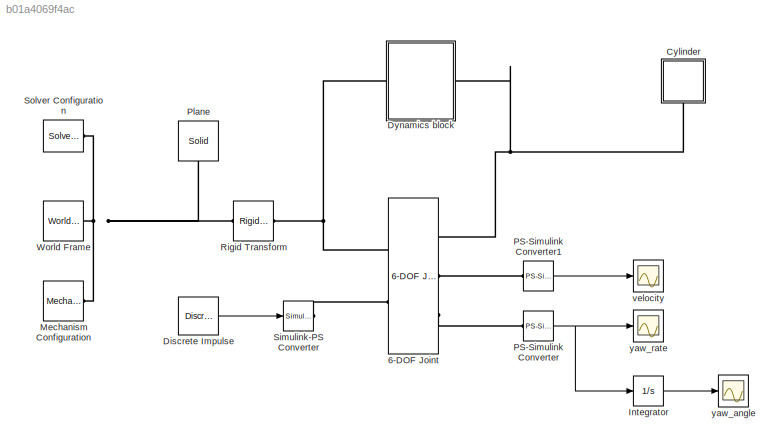
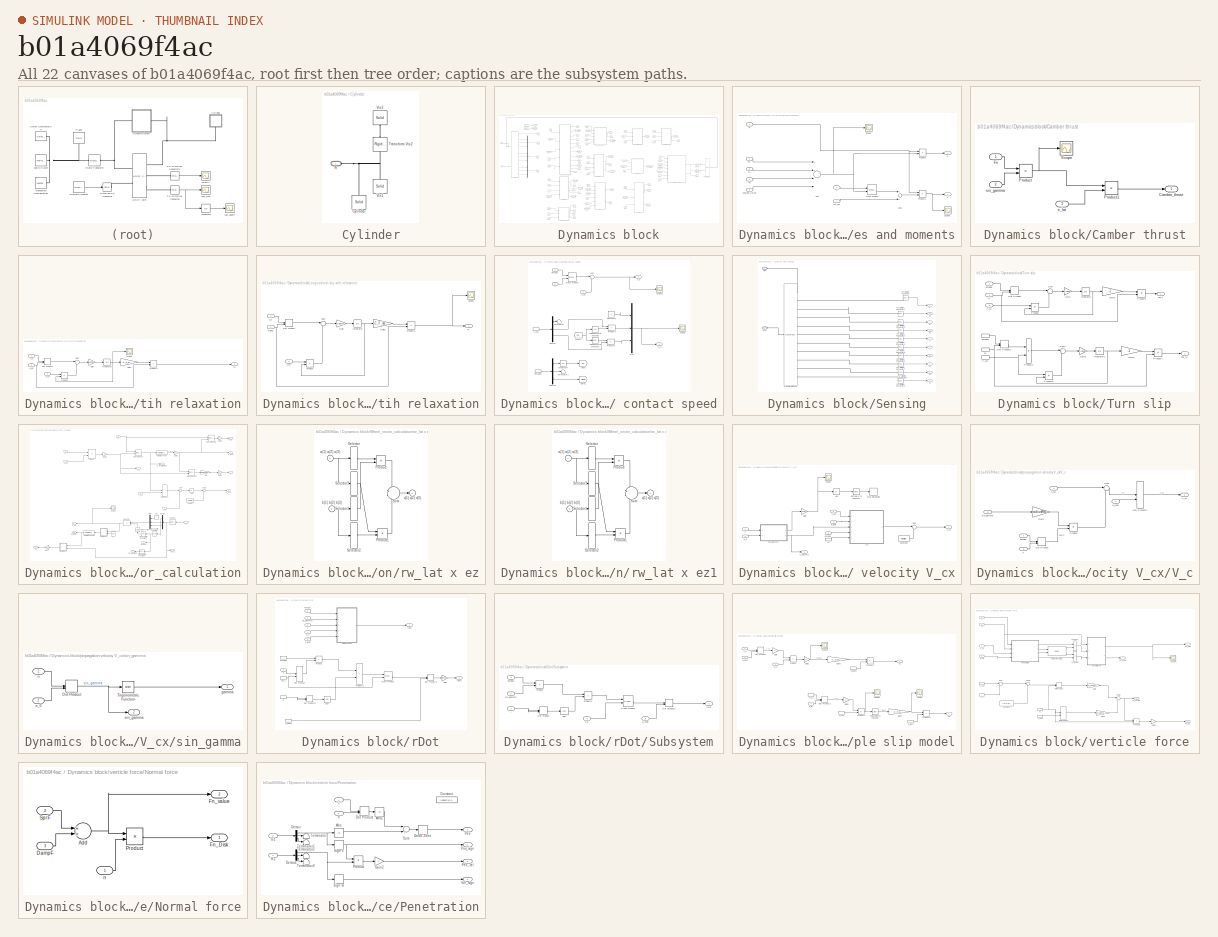
[diagram: thumbnail index - all 22 canvases of the model, root first then tree order]
MODEL slx_b01a4069f4ac
KIND model
CONFIG AbsTol = auto
CONFIG EnableMultiTasking = off
CONFIG FixedStep = auto
CONFIG MaxStep = auto
CONFIG MinStep = auto
CONFIG RelTol = 1e-3
CONFIG SampleTimeConstraint = Unconstrained
CONFIG Solver = VariableStepAuto
CONFIG SolverName = VariableStepAuto
CONFIG StartTime = 0.0
CONFIG StopTime = 100
BLOCK [Reference] 6-DOF Joint  REF=sm_lib/Joints/6-DOF Joint
  Ports = [0, 0, 0, 0, 0, 2, 3]
  SourceBlock = sm_lib/Joints/6-DOF Joint
  SourceProductBaseCode = MS
  SourceProductName = Simscape Multibody
  SourceType = 6-DOF Joint
BLOCK [SubSystem] Cylinder
  AncestorBlock = Parts_Lib/Cylinder
  Ports = [0, 0, 0, 0, 0, 1]
  RequestExecContextInheritance = off
  Tag = CustomStyle
  Variant = off
BLOCK [Reference] Cylinder/Cylinder  REF=sm_lib/Body Elements/Solid
  Ports = [0, 0, 0, 0, 0, 0, 1]
  SourceBlock = sm_lib/Body Elements/Solid
  SourceProductBaseCode = MS
  SourceProductName = Simscape Multibody
  SourceType = Solid
BLOCK [PMIOPort] Cylinder/R
  Port = 1
  Side = Left
BLOCK [Reference] Cylinder/Transform Vis2  REF=sm_lib/Frames and
Transforms/Rigid
Transform
  Ports = [0, 0, 0, 0, 0, 1, 1]
  SourceBlock = sm_lib/Frames and\nTransforms/Rigid\nTransform
  SourceProductBaseCode = MS
  SourceProductName = Simscape Multibody
  SourceType = Rigid\nTransform
BLOCK [Reference] Cylinder/Vis1  REF=sm_lib/Body Elements/Solid
  Ports = [0, 0, 0, 0, 0, 0, 1]
  SourceBlock = sm_lib/Body Elements/Solid
  SourceProductBaseCode = MS
  SourceProductName = Simscape Multibody
  SourceType = Solid
BLOCK [Reference] Cylinder/Vis2  REF=sm_lib/Body Elements/Solid
  Ports = [0, 0, 0, 0, 0, 0, 1]
  SourceBlock = sm_lib/Body Elements/Solid
  SourceProductBaseCode = MS
  SourceProductName = Simscape Multibody
  SourceType = Solid
BLOCK [Reference] Discrete Impulse  REF=dspsrcs4/Discrete 
Impulse
  Ports = [0, 1]
  SourceBlock = dspsrcs4/Discrete \nImpulse
  SourceProductBaseCode = DS
  SourceProductName = DSP System Toolbox
  SourceType = Discrete Impulse
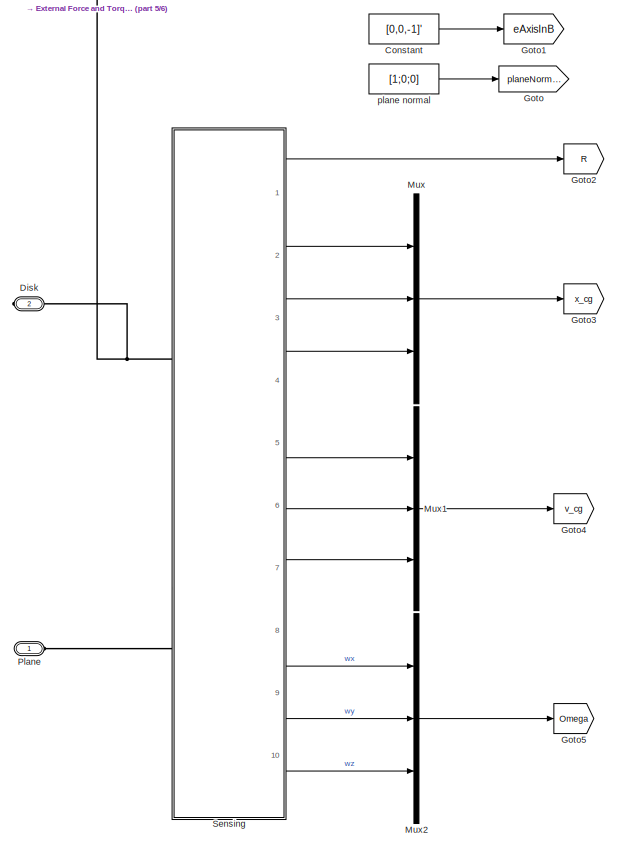
[diagram: Dynamics block - part 1/6, middle left region]
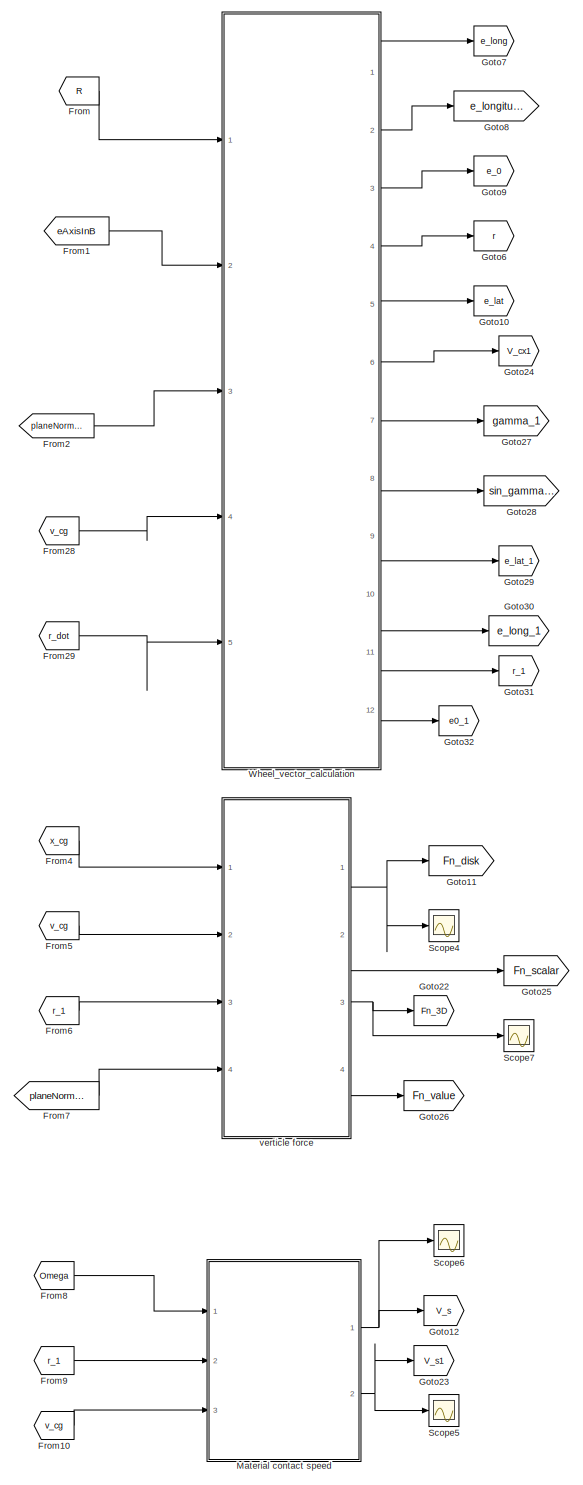
[diagram: Dynamics block - part 2/6, left side, full height]
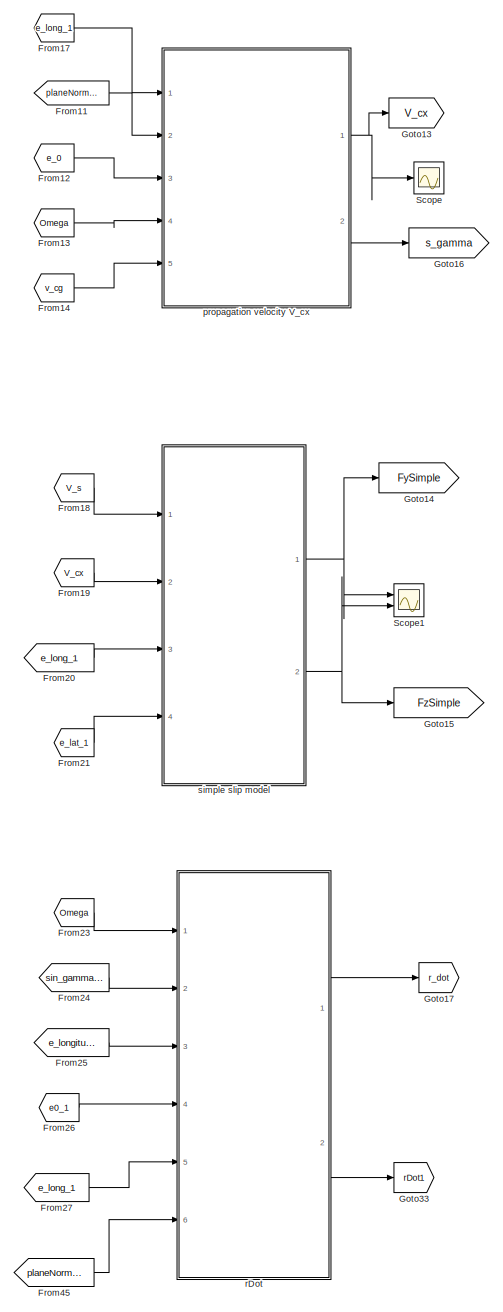
[diagram: Dynamics block - part 3/6, center side, full height]
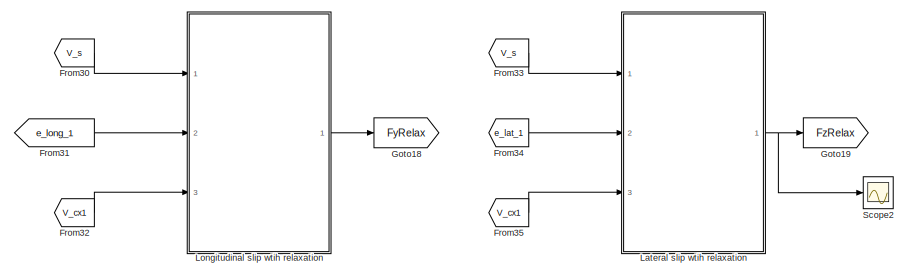
[diagram: Dynamics block - part 4/6, top right region]
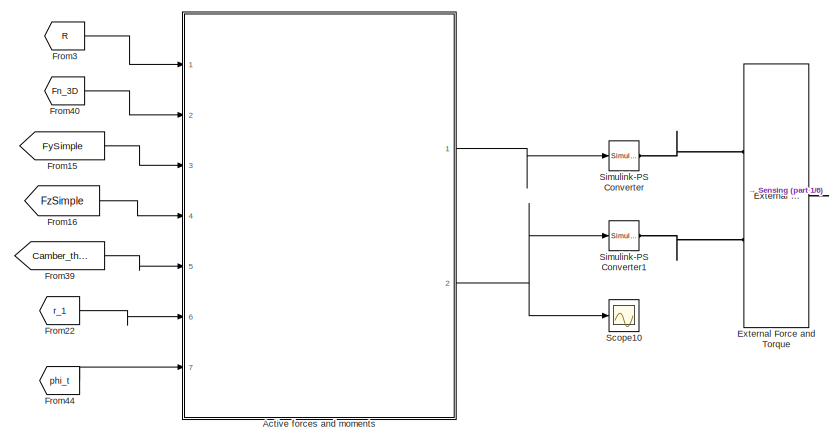
[diagram: Dynamics block - part 5/6, middle right region]
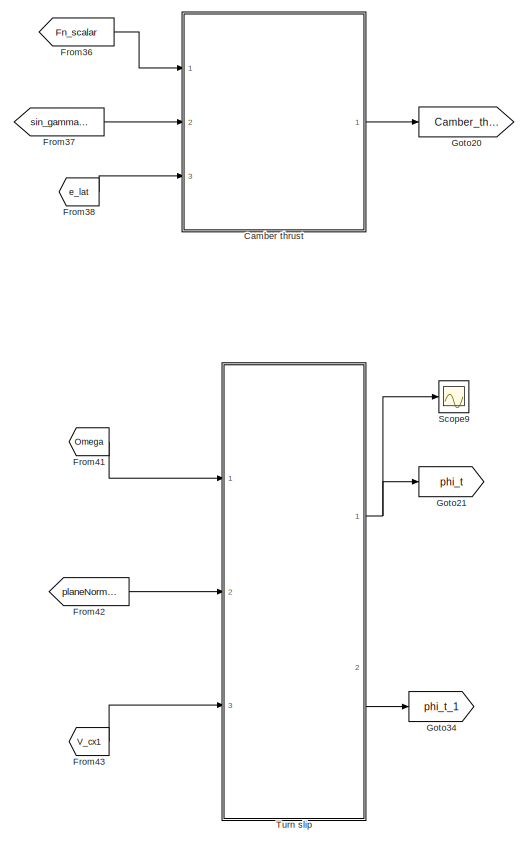
[diagram: Dynamics block - part 6/6, central region]
BLOCK [SubSystem] Dynamics block
  Ports = [0, 0, 0, 0, 0, 1, 1]
  RequestExecContextInheritance = off
  Variant = off
BLOCK [SubSystem] Dynamics block/Active forces and moments
  Ports = [7, 2]
  RequestExecContextInheritance = off
  Variant = off
BLOCK [Sum] Dynamics block/Active forces and moments/Add
  InputSameDT = off
  Inputs = 4
  OutDataTypeStr = Inherit: Inherit via internal rule
  Ports = [4, 1]
  SaturateOnIntegerOverflow = off
BLOCK [Sum] Dynamics block/Active forces and moments/Add1
  InputSameDT = off
  OutDataTypeStr = Inherit: Inherit via internal rule
  Ports = [2, 1]
  SaturateOnIntegerOverflow = off
BLOCK [Inport] Dynamics block/Active forces and moments/Camber_thrust
  IconDisplay = Port number
  Port = 5
BLOCK [Reference] Dynamics block/Active forces and moments/Cross Product  REF=Contact_Forces_Lib/Math/Cross
Product
  Ports = [2, 1]
  SourceBlock = Contact_Forces_Lib/Math/Cross\nProduct
  SourceType = SubSystem
BLOCK [Outport] Dynamics block/Active forces and moments/F
  IconDisplay = Port number
BLOCK [Inport] Dynamics block/Active forces and moments/Fx
  IconDisplay = Port number
  Port = 2
BLOCK [Inport] Dynamics block/Active forces and moments/Fy
  IconDisplay = Port number
  Port = 3
BLOCK [Inport] Dynamics block/Active forces and moments/Fz
  IconDisplay = Port number
  Port = 4
BLOCK [Product] Dynamics block/Active forces and moments/Product
  InputSameDT = off
  Inputs = /*
  Multiplication = Matrix(*)
  OutDataTypeStr = Inherit: Inherit via internal rule
  Ports = [2, 1]
  RndMeth = Floor
  SaturateOnIntegerOverflow = off
BLOCK [Product] Dynamics block/Active forces and moments/Product1
  InputSameDT = off
  Inputs = /*
  Multiplication = Matrix(*)
  OutDataTypeStr = Inherit: Inherit via internal rule
  Ports = [2, 1]
  RndMeth = Floor
  SaturateOnIntegerOverflow = off
BLOCK [Inport] Dynamics block/Active forces and moments/R
  IconDisplay = Port number
BLOCK [Scope] Dynamics block/Active forces and moments/Scope
  NumInputPorts = 1
  Ports = [1]
  ScopeSpecificationString = Simulink.scopes.TimeScopeBlockCfg('CurrentConfiguration', extmgr.ConfigurationSet(extmgr.Configuration('Core','General UI',true),extmgr.Configuration('Core','Source UI',true),extmgr.Configuration('Sources','WiredSimulink',true,'DataLoggingVariableName','ScopeData1'),extmgr.Configuration('Visuals','Time Domain',true,'SerializedDisplays',{struct('MinYLimReal','-1110.98146','MaxYLimReal','157.56326',...<+1453ch>
BLOCK [Scope] Dynamics block/Active forces and moments/Scope1
  NumInputPorts = 1
  Ports = [1]
  ScopeSpecificationString = Simulink.scopes.TimeScopeBlockCfg('CurrentConfiguration', extmgr.ConfigurationSet(extmgr.Configuration('Core','General UI',true),extmgr.Configuration('Core','Source UI',true),extmgr.Configuration('Sources','WiredSimulink',true,'DataLoggingVariableName','ScopeData2'),extmgr.Configuration('Visuals','Time Domain',true,'SerializedDisplays',{struct('MinYLimReal','-82.70952','MaxYLimReal','731.32046','Y...<+1458ch>
BLOCK [Outport] Dynamics block/Active forces and moments/T
  IconDisplay = Port number
  Port = 2
BLOCK [Inport] Dynamics block/Active forces and moments/cm_phi
  IconDisplay = Port number
  Port = 7
BLOCK [Inport] Dynamics block/Active forces and moments/r
  IconDisplay = Port number
  Port = 6
BLOCK [SubSystem] Dynamics block/Camber thrust
  Ports = [3, 1]
  RequestExecContextInheritance = off
  Variant = off
BLOCK [Outport] Dynamics block/Camber thrust/Camber_thrust
  IconDisplay = Port number
BLOCK [Inport] Dynamics block/Camber thrust/Fn
  IconDisplay = Port number
BLOCK [Product] Dynamics block/Camber thrust/Product
  InputSameDT = off
  OutDataTypeStr = Inherit: Inherit via internal rule
  Ports = [2, 1]
  RndMeth = Floor
  SaturateOnIntegerOverflow = off
BLOCK [Product] Dynamics block/Camber thrust/Product1
  InputSameDT = off
  OutDataTypeStr = Inherit: Inherit via internal rule
  Ports = [2, 1]
  RndMeth = Floor
  SaturateOnIntegerOverflow = off
BLOCK [Scope] Dynamics block/Camber thrust/Scope
  NumInputPorts = 1
  Ports = [1]
  ScopeSpecificationString = Simulink.scopes.TimeScopeBlockCfg('CurrentConfiguration', extmgr.ConfigurationSet(extmgr.Configuration('Core','General UI',true),extmgr.Configuration('Core','Source UI',true),extmgr.Configuration('Sources','WiredSimulink',true,'DataLoggingVariableName','ScopeData12'),extmgr.Configuration('Visuals','Time Domain',true,'SerializedDisplays',{struct('MinYLimReal','-228.88218','MaxYLimReal','25.43135','...<+1434ch>
BLOCK [Inport] Dynamics block/Camber thrust/e_lat
  IconDisplay = Port number
  Port = 3
BLOCK [Inport] Dynamics block/Camber thrust/sin_gamma
  IconDisplay = Port number
  Port = 2
BLOCK [Constant] Dynamics block/Constant
  Value = [0,0,-1]'
BLOCK [PMIOPort] Dynamics block/Disk
  Port = 2
  Side = Right
BLOCK [Reference] Dynamics block/External Force and Torque  REF=sm_lib/Forces and
Torques/External Force
and Torque
  Ports = [0, 0, 0, 0, 0, 2, 1]
  SourceBlock = sm_lib/Forces and\nTorques/External Force\nand Torque
  SourceProductBaseCode = MS
  SourceProductName = Simscape Multibody
  SourceType = External Force\nand Torque
BLOCK [From] Dynamics block/From
  GotoTag = R
BLOCK [From] Dynamics block/From1
  GotoTag = eAxisInB
BLOCK [From] Dynamics block/From10
  GotoTag = v_cg
BLOCK [From] Dynamics block/From11
  GotoTag = planeNormal
BLOCK [From] Dynamics block/From12
  GotoTag = e_0
BLOCK [From] Dynamics block/From13
  GotoTag = Omega
BLOCK [From] Dynamics block/From14
  GotoTag = v_cg
BLOCK [From] Dynamics block/From15
  GotoTag = FySimple
BLOCK [From] Dynamics block/From16
  GotoTag = FzSimple
BLOCK [From] Dynamics block/From17
  GotoTag = e_long_1
BLOCK [From] Dynamics block/From18
  GotoTag = V_s
BLOCK [From] Dynamics block/From19
  GotoTag = V_cx
BLOCK [From] Dynamics block/From2
  GotoTag = planeNormal
BLOCK [From] Dynamics block/From20
  GotoTag = e_long_1
BLOCK [From] Dynamics block/From21
  GotoTag = e_lat_1
BLOCK [From] Dynamics block/From22
  GotoTag = r_1
BLOCK [From] Dynamics block/From23
  GotoTag = Omega
BLOCK [From] Dynamics block/From24
  GotoTag = sin_gamma_1
BLOCK [From] Dynamics block/From25
  GotoTag = e_longitudinal
BLOCK [From] Dynamics block/From26
  GotoTag = e0_1
BLOCK [From] Dynamics block/From27
  GotoTag = e_long_1
BLOCK [From] Dynamics block/From28
  GotoTag = v_cg
BLOCK [From] Dynamics block/From29
  GotoTag = r_dot
BLOCK [From] Dynamics block/From3
  GotoTag = R
BLOCK [From] Dynamics block/From30
  GotoTag = V_s
BLOCK [From] Dynamics block/From31
  GotoTag = e_long_1
BLOCK [From] Dynamics block/From32
  GotoTag = V_cx1
BLOCK [From] Dynamics block/From33
  GotoTag = V_s
BLOCK [From] Dynamics block/From34
  GotoTag = e_lat_1
BLOCK [From] Dynamics block/From35
  GotoTag = V_cx1
BLOCK [From] Dynamics block/From36
  GotoTag = Fn_scalar
BLOCK [From] Dynamics block/From37
  GotoTag = sin_gamma_1
BLOCK [From] Dynamics block/From38
  GotoTag = e_lat
BLOCK [From] Dynamics block/From39
  GotoTag = Camber_thrust
BLOCK [From] Dynamics block/From4
  GotoTag = x_cg
BLOCK [From] Dynamics block/From40
  GotoTag = Fn_3D
BLOCK [From] Dynamics block/From41
  GotoTag = Omega
BLOCK [From] Dynamics block/From42
  GotoTag = planeNormal
BLOCK [From] Dynamics block/From43
  GotoTag = V_cx1
BLOCK [From] Dynamics block/From44
  GotoTag = phi_t
BLOCK [From] Dynamics block/From45
  GotoTag = planeNormal
BLOCK [From] Dynamics block/From5
  GotoTag = v_cg
BLOCK [From] Dynamics block/From6
  GotoTag = r_1
BLOCK [From] Dynamics block/From7
  GotoTag = planeNormal
BLOCK [From] Dynamics block/From8
  GotoTag = Omega
BLOCK [From] Dynamics block/From9
  GotoTag = r_1
BLOCK [Goto] Dynamics block/Goto
  GotoTag = planeNormal
BLOCK [Goto] Dynamics block/Goto1
  GotoTag = eAxisInB
BLOCK [Goto] Dynamics block/Goto10
  GotoTag = e_lat
BLOCK [Goto] Dynamics block/Goto11
  GotoTag = Fn_disk
BLOCK [Goto] Dynamics block/Goto12
  GotoTag = V_s
BLOCK [Goto] Dynamics block/Goto13
  GotoTag = V_cx
BLOCK [Goto] Dynamics block/Goto14
  GotoTag = FySimple
BLOCK [Goto] Dynamics block/Goto15
  GotoTag = FzSimple
BLOCK [Goto] Dynamics block/Goto16
  GotoTag = s_gamma
BLOCK [Goto] Dynamics block/Goto17
  GotoTag = r_dot
BLOCK [Goto] Dynamics block/Goto18
  GotoTag = FyRelax
BLOCK [Goto] Dynamics block/Goto19
  GotoTag = FzRelax
BLOCK [Goto] Dynamics block/Goto2
  GotoTag = R
BLOCK [Goto] Dynamics block/Goto20
  GotoTag = Camber_thrust
BLOCK [Goto] Dynamics block/Goto21
  GotoTag = phi_t
BLOCK [Goto] Dynamics block/Goto22
  GotoTag = Fn_3D
BLOCK [Goto] Dynamics block/Goto23
  GotoTag = V_s1
BLOCK [Goto] Dynamics block/Goto24
  GotoTag = V_cx1
BLOCK [Goto] Dynamics block/Goto25
  GotoTag = Fn_scalar
BLOCK [Goto] Dynamics block/Goto26
  GotoTag = Fn_value
BLOCK [Goto] Dynamics block/Goto27
  GotoTag = gamma_1
BLOCK [Goto] Dynamics block/Goto28
  GotoTag = sin_gamma_1
BLOCK [Goto] Dynamics block/Goto29
  GotoTag = e_lat_1
BLOCK [Goto] Dynamics block/Goto3
  GotoTag = x_cg
BLOCK [Goto] Dynamics block/Goto30
  GotoTag = e_long_1
BLOCK [Goto] Dynamics block/Goto31
  GotoTag = r_1
BLOCK [Goto] Dynamics block/Goto32
  GotoTag = e0_1
BLOCK [Goto] Dynamics block/Goto33
  GotoTag = rDot1
BLOCK [Goto] Dynamics block/Goto34
  GotoTag = phi_t_1
BLOCK [Goto] Dynamics block/Goto4
  GotoTag = v_cg
BLOCK [Goto] Dynamics block/Goto5
  GotoTag = Omega
BLOCK [Goto] Dynamics block/Goto6
  GotoTag = r
BLOCK [Goto] Dynamics block/Goto7
  GotoTag = e_long
BLOCK [Goto] Dynamics block/Goto8
  GotoTag = e_longitudinal
BLOCK [Goto] Dynamics block/Goto9
  GotoTag = e_0
BLOCK [SubSystem] Dynamics block/Lateral slip wtih relaxation
  Ports = [3, 1]
  RequestExecContextInheritance = off
  Variant = off
BLOCK [DotProduct] Dynamics block/Lateral slip wtih relaxation/Dot Product
  OutDataTypeStr = Inherit: Inherit via internal rule
BLOCK [Outport] Dynamics block/Lateral slip wtih relaxation/Fz
  IconDisplay = Port number
BLOCK [Gain] Dynamics block/Lateral slip wtih relaxation/Gain
  Gain = 1/sigma
  OutDataTypeStr = Inherit: Inherit via internal rule
  ParamDataTypeStr = Inherit: Inherit via internal rule
  SaturateOnIntegerOverflow = off
BLOCK [Gain] Dynamics block/Lateral slip wtih relaxation/Gain1
  Gain = -C_F_alpha
  OutDataTypeStr = Inherit: Inherit via internal rule
  ParamDataTypeStr = Inherit: Inherit via internal rule
  SaturateOnIntegerOverflow = off
BLOCK [Integrator] Dynamics block/Lateral slip wtih relaxation/Integrator
  Ports = [1, 1]
BLOCK [Product] Dynamics block/Lateral slip wtih relaxation/Product
  InputSameDT = off
  OutDataTypeStr = Inherit: Inherit via internal rule
  Ports = [2, 1]
  RndMeth = Floor
  SaturateOnIntegerOverflow = off
BLOCK [Product] Dynamics block/Lateral slip wtih relaxation/Product1
  InputSameDT = off
  OutDataTypeStr = Inherit: Inherit via internal rule
  Ports = [2, 1]
  RndMeth = Floor
  SaturateOnIntegerOverflow = off
BLOCK [Scope] Dynamics block/Lateral slip wtih relaxation/Scope
  NumInputPorts = 1
  Ports = [1]
  ScopeSpecificationString = Simulink.scopes.TimeScopeBlockCfg('CurrentConfiguration', extmgr.ConfigurationSet(extmgr.Configuration('Core','General UI',true),extmgr.Configuration('Core','Source UI',true),extmgr.Configuration('Sources','WiredSimulink',true,'DataLoggingVariableName','ScopeData10'),extmgr.Configuration('Visuals','Time Domain',true,'SerializedDisplays',{struct('MinYLimReal','-0.000000000075','MaxYLimReal','0.0000...<+1480ch>
BLOCK [Sum] Dynamics block/Lateral slip wtih relaxation/Sum
  IconShape = round
  InputSameDT = off
  Inputs = |+-
  OutDataTypeStr = Inherit: Inherit via internal rule
  Ports = [2, 1]
  SaturateOnIntegerOverflow = off
BLOCK [Inport] Dynamics block/Lateral slip wtih relaxation/V_cx
  IconDisplay = Port number
  Port = 3
BLOCK [Inport] Dynamics block/Lateral slip wtih relaxation/V_s
  IconDisplay = Port number
BLOCK [Inport] Dynamics block/Lateral slip wtih relaxation/e_lat
  IconDisplay = Port number
  Port = 2
BLOCK [SubSystem] Dynamics block/Longitudinal slip wtih relaxation
  Ports = [3, 1]
  RequestExecContextInheritance = off
  Variant = off
BLOCK [DotProduct] Dynamics block/Longitudinal slip wtih relaxation/Dot Product
  OutDataTypeStr = Inherit: Inherit via internal rule
BLOCK [Outport] Dynamics block/Longitudinal slip wtih relaxation/Fy
  IconDisplay = Port number
BLOCK [Gain] Dynamics block/Longitudinal slip wtih relaxation/Gain
  Gain = 1/sigma
  OutDataTypeStr = Inherit: Inherit via internal rule
  ParamDataTypeStr = Inherit: Inherit via internal rule
  SaturateOnIntegerOverflow = off
BLOCK [Gain] Dynamics block/Longitudinal slip wtih relaxation/Gain1
  Gain = -C_F_kappa
  OutDataTypeStr = Inherit: Inherit via internal rule
  ParamDataTypeStr = Inherit: Inherit via internal rule
  SaturateOnIntegerOverflow = off
BLOCK [Integrator] Dynamics block/Longitudinal slip wtih relaxation/Integrator
  Ports = [1, 1]
BLOCK [Product] Dynamics block/Longitudinal slip wtih relaxation/Product
  InputSameDT = off
  OutDataTypeStr = Inherit: Inherit via internal rule
  Ports = [2, 1]
  RndMeth = Floor
  SaturateOnIntegerOverflow = off
BLOCK [Product] Dynamics block/Longitudinal slip wtih relaxation/Product1
  InputSameDT = off
  OutDataTypeStr = Inherit: Inherit via internal rule
  Ports = [2, 1]
  RndMeth = Floor
  SaturateOnIntegerOverflow = off
BLOCK [Scope] Dynamics block/Longitudinal slip wtih relaxation/Scope
  NumInputPorts = 1
  Ports = [1]
  ScopeSpecificationString = Simulink.scopes.TimeScopeBlockCfg('CurrentConfiguration', extmgr.ConfigurationSet(extmgr.Configuration('Core','General UI',true),extmgr.Configuration('Core','Source UI',true),extmgr.Configuration('Sources','WiredSimulink',true,'DataLoggingVariableName','ScopeData6'),extmgr.Configuration('Visuals','Time Domain',true,'SerializedDisplays',{struct('MinYLimReal','-19.20554','MaxYLimReal','2.15586','YLa...<+1452ch>
BLOCK [Sum] Dynamics block/Longitudinal slip wtih relaxation/Sum
  IconShape = round
  InputSameDT = off
  Inputs = |+-
  OutDataTypeStr = Inherit: Inherit via internal rule
  Ports = [2, 1]
  SaturateOnIntegerOverflow = off
BLOCK [Inport] Dynamics block/Longitudinal slip wtih relaxation/V_cx
  IconDisplay = Port number
  Port = 3
BLOCK [Inport] Dynamics block/Longitudinal slip wtih relaxation/V_s
  IconDisplay = Port number
BLOCK [Inport] Dynamics block/Longitudinal slip wtih relaxation/e_long
  IconDisplay = Port number
  Port = 2
BLOCK [SubSystem] Dynamics block/Material contact speed
  Ports = [3, 2]
  RequestExecContextInheritance = off
  Variant = off
BLOCK [Constant] Dynamics block/Material contact speed/Constant2
  Value = 0
BLOCK [Reference] Dynamics block/Material contact speed/Cross Product  REF=Contact_Forces_Lib/Math/Cross
Product
  Ports = [2, 1]
  SourceBlock = Contact_Forces_Lib/Math/Cross\nProduct
  SourceType = SubSystem
BLOCK [Demux] Dynamics block/Material contact speed/Demux
  DisplayOption = bar
  Outputs = 3
  Ports = [1, 3]
BLOCK [Demux] Dynamics block/Material contact speed/Demux1
  DisplayOption = bar
  Outputs = 3
  Ports = [1, 3]
BLOCK [From] Dynamics block/Material contact speed/From1
  GotoTag = psi
BLOCK [Goto] Dynamics block/Material contact speed/Goto
  GotoTag = psi
BLOCK [Goto] Dynamics block/Material contact speed/Goto1
  GotoTag = Dtheta
BLOCK [Integrator] Dynamics block/Material contact speed/Integrator
  Ports = [1, 1]
BLOCK [Mux] Dynamics block/Material contact speed/Mux
  DisplayOption = bar
  Inputs = 3
  Ports = [3, 1]
BLOCK [Product] Dynamics block/Material contact speed/Product1
  Ports = [2, 1]
  RndMeth = Floor
BLOCK [Product] Dynamics block/Material contact speed/Product3
  Ports = [2, 1]
  RndMeth = Floor
BLOCK [Scope] Dynamics block/Material contact speed/Scope
  NumInputPorts = 1
  Ports = [1]
  ScopeSpecificationString = Simulink.scopes.TimeScopeBlockCfg('CurrentConfiguration', extmgr.ConfigurationSet(extmgr.Configuration('Core','General UI',true),extmgr.Configuration('Core','Source UI',true),extmgr.Configuration('Sources','WiredSimulink',true,'DataLoggingVariableName','ScopeData1'),extmgr.Configuration('Visuals','Time Domain',true,'SerializedDisplays',{struct('MinYLimReal','-0.0775','MaxYLimReal','0.6975','YLabel...<+1439ch>
BLOCK [Scope] Dynamics block/Material contact speed/Scope1
  NumInputPorts = 1
  Ports = [1]
  ScopeSpecificationString = Simulink.scopes.TimeScopeBlockCfg('CurrentConfiguration', extmgr.ConfigurationSet(extmgr.Configuration('Core','General UI',true),extmgr.Configuration('Core','Source UI',true),extmgr.Configuration('Sources','WiredSimulink',true,'DataLoggingVariableName','ScopeData2'),extmgr.Configuration('Visuals','Time Domain',true,'SerializedDisplays',{struct('MinYLimReal','-0.13759','MaxYLimReal','0.70418','YLab...<+1432ch>
BLOCK [Sum] Dynamics block/Material contact speed/Sum
  IconShape = round
  InputSameDT = off
  Inputs = |++
  OutDataTypeStr = Inherit: Inherit via internal rule
  Ports = [2, 1]
  SaturateOnIntegerOverflow = off
BLOCK [Terminator] Dynamics block/Material contact speed/Terminator
BLOCK [Terminator] Dynamics block/Material contact speed/Terminator1
BLOCK [Trigonometry] Dynamics block/Material contact speed/Trigonometric Function
  Operator = cos
  Ports = [1, 1]
BLOCK [Trigonometry] Dynamics block/Material contact speed/Trigonometric Function1
  Ports = [1, 1]
BLOCK [Outport] Dynamics block/Material contact speed/V_s
  IconDisplay = Port number
BLOCK [Outport] Dynamics block/Material contact speed/V_s1
  IconDisplay = Port number
  Port = 2
BLOCK [Inport] Dynamics block/Material contact speed/omega
  IconDisplay = Port number
BLOCK [InportShadow] Dynamics block/Material contact speed/omega1
  IconDisplay = Port number
BLOCK [Inport] Dynamics block/Material contact speed/r
  IconDisplay = Port number
  Port = 2
BLOCK [Inport] Dynamics block/Material contact speed/v_cg
  IconDisplay = Port number
  Port = 3
BLOCK [InportShadow] Dynamics block/Material contact speed/v_cg1
  IconDisplay = Port number
  Port = 3
BLOCK [Mux] Dynamics block/Mux
  DisplayOption = bar
  Inputs = 3
  Ports = [3, 1]
BLOCK [Mux] Dynamics block/Mux1
  DisplayOption = bar
  Inputs = 3
  Ports = [3, 1]
BLOCK [Mux] Dynamics block/Mux2
  DisplayOption = bar
  Inputs = 3
  Ports = [3, 1]
BLOCK [PMIOPort] Dynamics block/Plane
  Port = 1
  Side = Left
BLOCK [Scope] Dynamics block/Scope
  NumInputPorts = 1
  Ports = [1]
  ScopeSpecificationString = Simulink.scopes.TimeScopeBlockCfg('CurrentConfiguration', extmgr.ConfigurationSet(extmgr.Configuration('Core','General UI',true),extmgr.Configuration('Core','Source UI',true),extmgr.Configuration('Sources','WiredSimulink',true,'DataLoggingVariableName','ScopeData1'),extmgr.Configuration('Visuals','Time Domain',true,'SerializedDisplays',{struct('MinYLimReal','0.48324','MaxYLimReal','0.73335','YLabe...<+1458ch>
BLOCK [Scope] Dynamics block/Scope1
  NumInputPorts = 2
  Ports = [2]
  ScopeSpecificationString = Simulink.scopes.TimeScopeBlockCfg('CurrentConfiguration', extmgr.ConfigurationSet(extmgr.Configuration('Core','General UI',true),extmgr.Configuration('Core','Source UI',true),extmgr.Configuration('Sources','WiredSimulink',true,'DataLoggingVariableName','ScopeData2'),extmgr.Configuration('Visuals','Time Domain',true,'SerializedDisplays',{struct('MinYLimReal','-25565.14105','MaxYLimReal','33260.8726...<+1559ch>
BLOCK [Scope] Dynamics block/Scope10
  NumInputPorts = 1
  Ports = [1]
  ScopeSpecificationString = Simulink.scopes.TimeScopeBlockCfg('CurrentConfiguration', extmgr.ConfigurationSet(extmgr.Configuration('Core','General UI',true),extmgr.Configuration('Core','Source UI',true),extmgr.Configuration('Sources','WiredSimulink',true,'DataLoggingVariableName','ScopeData9'),extmgr.Configuration('Visuals','Time Domain',true,'SerializedDisplays',{struct('MinYLimReal','-82.70952','MaxYLimReal','731.32046','Y...<+1517ch>
BLOCK [Scope] Dynamics block/Scope2
  NumInputPorts = 1
  Ports = [1]
  ScopeSpecificationString = Simulink.scopes.TimeScopeBlockCfg('CurrentConfiguration', extmgr.ConfigurationSet(extmgr.Configuration('Core','General UI',true),extmgr.Configuration('Core','Source UI',true),extmgr.Configuration('Sources','WiredSimulink',true,'DataLoggingVariableName','ScopeData5'),extmgr.Configuration('Visuals','Time Domain',true,'SerializedDisplays',{struct('MinYLimReal','-0.000000008','MaxYLimReal','0.00000007...<+1541ch>
BLOCK [Scope] Dynamics block/Scope4
  NumInputPorts = 1
  Ports = [1]
  ScopeSpecificationString = Simulink.scopes.TimeScopeBlockCfg('CurrentConfiguration', extmgr.ConfigurationSet(extmgr.Configuration('Core','General UI',true),extmgr.Configuration('Core','Source UI',true),extmgr.Configuration('Sources','WiredSimulink',true,'DataLoggingVariableName','ScopeData2'),extmgr.Configuration('Visuals','Time Domain',true,'SerializedDisplays',{struct('MinYLimReal','-61.06193','MaxYLimReal','549.55734','Y...<+1459ch>
BLOCK [Scope] Dynamics block/Scope5
  NumInputPorts = 1
  Ports = [1]
  ScopeSpecificationString = Simulink.scopes.TimeScopeBlockCfg('CurrentConfiguration', extmgr.ConfigurationSet(extmgr.Configuration('Core','General UI',true),extmgr.Configuration('Core','Source UI',true),extmgr.Configuration('Sources','WiredSimulink',true,'DataLoggingVariableName','ScopeData1'),extmgr.Configuration('Visuals','Time Domain',true,'SerializedDisplays',{struct('MinYLimReal','-0.0172','MaxYLimReal','0.00191','YLabe...<+1469ch>
BLOCK [Scope] Dynamics block/Scope6
  NumInputPorts = 1
  Ports = [1]
  ScopeSpecificationString = Simulink.scopes.TimeScopeBlockCfg('CurrentConfiguration', extmgr.ConfigurationSet(extmgr.Configuration('Core','General UI',true),extmgr.Configuration('Core','Source UI',true),extmgr.Configuration('Sources','WiredSimulink',true,'DataLoggingVariableName','ScopeData2'),extmgr.Configuration('Visuals','Time Domain',true,'SerializedDisplays',{struct('MinYLimReal','-0.71495','MaxYLimReal','0.76833','YLab...<+1473ch>
BLOCK [Scope] Dynamics block/Scope7
  NumInputPorts = 1
  Ports = [1]
  ScopeSpecificationString = Simulink.scopes.TimeScopeBlockCfg('CurrentConfiguration', extmgr.ConfigurationSet(extmgr.Configuration('Core','General UI',true),extmgr.Configuration('Core','Source UI',true),extmgr.Configuration('Sources','WiredSimulink',true,'DataLoggingVariableName','ScopeData4'),extmgr.Configuration('Visuals','Time Domain',true,'SerializedDisplays',{struct('MinYLimReal','-60.93547','MaxYLimReal','548.41924','Y...<+1459ch>
BLOCK [Scope] Dynamics block/Scope9
  NumInputPorts = 1
  Ports = [1]
  ScopeSpecificationString = Simulink.scopes.TimeScopeBlockCfg('CurrentConfiguration', extmgr.ConfigurationSet(extmgr.Configuration('Core','General UI',true),extmgr.Configuration('Core','Source UI',true),extmgr.Configuration('Sources','WiredSimulink',true,'DataLoggingVariableName','ScopeData8'),extmgr.Configuration('Visuals','Time Domain',true,'SerializedDisplays',{struct('MinYLimReal','-0.10576','MaxYLimReal','0.95184','YLab...<+1453ch>
BLOCK [SubSystem] Dynamics block/Sensing
  Ports = [0, 10, 0, 0, 0, 2]
  RequestExecContextInheritance = off
  Variant = off
BLOCK [PMIOPort] Dynamics block/Sensing/Disk
  Port = 1
  Side = Left
BLOCK [Reference] Dynamics block/Sensing/PS-Simulink Converter  REF=nesl_utility/PS-Simulink
Converter
  Ports = [0, 1, 0, 0, 0, 1]
  SourceBlock = nesl_utility/PS-Simulink\nConverter
  SourceProductBaseCode = SS
  SourceProductName = Simscape
  SourceType = PS-Simulink\nConverter
BLOCK [Reference] Dynamics block/Sensing/PS-Simulink Converter1  REF=nesl_utility/PS-Simulink
Converter
  Ports = [0, 1, 0, 0, 0, 1]
  SourceBlock = nesl_utility/PS-Simulink\nConverter
  SourceProductBaseCode = SS
  SourceProductName = Simscape
  SourceType = PS-Simulink\nConverter
BLOCK [Reference] Dynamics block/Sensing/PS-Simulink Converter2  REF=nesl_utility/PS-Simulink
Converter
  Ports = [0, 1, 0, 0, 0, 1]
  SourceBlock = nesl_utility/PS-Simulink\nConverter
  SourceProductBaseCode = SS
  SourceProductName = Simscape
  SourceType = PS-Simulink\nConverter
BLOCK [Reference] Dynamics block/Sensing/PS-Simulink Converter3  REF=nesl_utility/PS-Simulink
Converter
  Ports = [0, 1, 0, 0, 0, 1]
  SourceBlock = nesl_utility/PS-Simulink\nConverter
  SourceProductBaseCode = SS
  SourceProductName = Simscape
  SourceType = PS-Simulink\nConverter
BLOCK [Reference] Dynamics block/Sensing/PS-Simulink Converter4  REF=nesl_utility/PS-Simulink
Converter
  Ports = [0, 1, 0, 0, 0, 1]
  SourceBlock = nesl_utility/PS-Simulink\nConverter
  SourceProductBaseCode = SS
  SourceProductName = Simscape
  SourceType = PS-Simulink\nConverter
BLOCK [Reference] Dynamics block/Sensing/PS-Simulink Converter5  REF=nesl_utility/PS-Simulink
Converter
  Ports = [0, 1, 0, 0, 0, 1]
  SourceBlock = nesl_utility/PS-Simulink\nConverter
  SourceProductBaseCode = SS
  SourceProductName = Simscape
  SourceType = PS-Simulink\nConverter
BLOCK [Reference] Dynamics block/Sensing/PS-Simulink Converter6  REF=nesl_utility/PS-Simulink
Converter
  Ports = [0, 1, 0, 0, 0, 1]
  SourceBlock = nesl_utility/PS-Simulink\nConverter
  SourceProductBaseCode = SS
  SourceProductName = Simscape
  SourceType = PS-Simulink\nConverter
BLOCK [Reference] Dynamics block/Sensing/PS-Simulink Converter7  REF=nesl_utility/PS-Simulink
Converter
  Ports = [0, 1, 0, 0, 0, 1]
  SourceBlock = nesl_utility/PS-Simulink\nConverter
  SourceProductBaseCode = SS
  SourceProductName = Simscape
  SourceType = PS-Simulink\nConverter
BLOCK [Reference] Dynamics block/Sensing/PS-Simulink Converter8  REF=nesl_utility/PS-Simulink
Converter
  Ports = [0, 1, 0, 0, 0, 1]
  SourceBlock = nesl_utility/PS-Simulink\nConverter
  SourceProductBaseCode = SS
  SourceProductName = Simscape
  SourceType = PS-Simulink\nConverter
BLOCK [Reference] Dynamics block/Sensing/PS-Simulink Converter9  REF=nesl_utility/PS-Simulink
Converter
  Ports = [0, 1, 0, 0, 0, 1]
  SourceBlock = nesl_utility/PS-Simulink\nConverter
  SourceProductBaseCode = SS
  SourceProductName = Simscape
  SourceType = PS-Simulink\nConverter
BLOCK [Outport] Dynamics block/Sensing/R
  IconDisplay = Port number
BLOCK [Reference] Dynamics block/Sensing/Transform Sensor  REF=sm_lib/Frames and
Transforms/Transform
Sensor
  Ports = [0, 0, 0, 0, 0, 1, 11]
  SourceBlock = sm_lib/Frames and\nTransforms/Transform\nSensor
  SourceProductBaseCode = MS
  SourceProductName = Simscape Multibody
  SourceType = Transform\nSensor
BLOCK [PMIOPort] Dynamics block/Sensing/plane
  Port = 2
  Side = Left
BLOCK [Outport] Dynamics block/Sensing/vx
  IconDisplay = Port number
  Port = 5
BLOCK [Outport] Dynamics block/Sensing/vy
  IconDisplay = Port number
  Port = 6
BLOCK [Outport] Dynamics block/Sensing/vz
  IconDisplay = Port number
  Port = 7
BLOCK [Outport] Dynamics block/Sensing/wx
  IconDisplay = Port number
  Port = 8
BLOCK [Outport] Dynamics block/Sensing/wy
  IconDisplay = Port number
  Port = 9
BLOCK [Outport] Dynamics block/Sensing/wz
  IconDisplay = Port number
  Port = 10
BLOCK [Outport] Dynamics block/Sensing/x
  IconDisplay = Port number
  Port = 2
BLOCK [Outport] Dynamics block/Sensing/y
  IconDisplay = Port number
  Port = 3
BLOCK [Outport] Dynamics block/Sensing/z
  IconDisplay = Port number
  Port = 4
BLOCK [Reference] Dynamics block/Simulink-PS Converter  REF=nesl_utility/Simulink-PS
Converter
  Ports = [1, 0, 0, 0, 0, 0, 1]
  SourceBlock = nesl_utility/Simulink-PS\nConverter
  SourceProductBaseCode = SS
  SourceProductName = Simscape
  SourceType = Simulink-PS\nConverter
BLOCK [Reference] Dynamics block/Simulink-PS Converter1  REF=nesl_utility/Simulink-PS
Converter
  Ports = [1, 0, 0, 0, 0, 0, 1]
  SourceBlock = nesl_utility/Simulink-PS\nConverter
  SourceProductBaseCode = SS
  SourceProductName = Simscape
  SourceType = Simulink-PS\nConverter
BLOCK [SubSystem] Dynamics block/Turn slip
  Ports = [3, 2]
  RequestExecContextInheritance = off
  Variant = off
BLOCK [DotProduct] Dynamics block/Turn slip/Dot Product
  OutDataTypeStr = Inherit: Inherit via internal rule
BLOCK [DotProduct] Dynamics block/Turn slip/Dot Product1
  Commented = on
  OutDataTypeStr = Inherit: Inherit via internal rule
BLOCK [Gain] Dynamics block/Turn slip/Gain
  Gain = 1/sigma
  OutDataTypeStr = Inherit: Inherit via internal rule
  ParamDataTypeStr = Inherit: Inherit via internal rule
  SaturateOnIntegerOverflow = off
BLOCK [Gain] Dynamics block/Turn slip/Gain1
  Gain = -1
  OutDataTypeStr = Inherit: Inherit via internal rule
  ParamDataTypeStr = Inherit: Inherit via internal rule
  SaturateOnIntegerOverflow = off
BLOCK [Gain] Dynamics block/Turn slip/Gain2
  Commented = on
  Gain = 1/sigma
  OutDataTypeStr = Inherit: Inherit via internal rule
  ParamDataTypeStr = Inherit: Inherit via internal rule
  SaturateOnIntegerOverflow = off
BLOCK [Gain] Dynamics block/Turn slip/Gain3
  Commented = on
  Gain = -1
  OutDataTypeStr = Inherit: Inherit via internal rule
  ParamDataTypeStr = Inherit: Inherit via internal rule
  SaturateOnIntegerOverflow = off
BLOCK [Integrator] Dynamics block/Turn slip/Integrator
  Ports = [1, 1]
BLOCK [Integrator] Dynamics block/Turn slip/Integrator1
  Commented = on
  Ports = [1, 1]
BLOCK [Product] Dynamics block/Turn slip/Product
  InputSameDT = off
  OutDataTypeStr = Inherit: Inherit via internal rule
  Ports = [2, 1]
  RndMeth = Floor
  SaturateOnIntegerOverflow = off
BLOCK [Product] Dynamics block/Turn slip/Product1
  InputSameDT = off
  OutDataTypeStr = Inherit: Inherit via internal rule
  Ports = [2, 1]
  RndMeth = Floor
  SaturateOnIntegerOverflow = off
BLOCK [Product] Dynamics block/Turn slip/Product2
  Commented = on
  InputSameDT = off
  Inputs = */
  OutDataTypeStr = Inherit: Inherit via internal rule
  Ports = [2, 1]
  RndMeth = Floor
  SaturateOnIntegerOverflow = off
BLOCK [Product] Dynamics block/Turn slip/Product3
  Commented = on
  InputSameDT = off
  OutDataTypeStr = Inherit: Inherit via internal rule
  Ports = [2, 1]
  RndMeth = Floor
  SaturateOnIntegerOverflow = off
BLOCK [Product] Dynamics block/Turn slip/Product4
  Commented = on
  InputSameDT = off
  OutDataTypeStr = Inherit: Inherit via internal rule
  Ports = [2, 1]
  RndMeth = Floor
  SaturateOnIntegerOverflow = off
BLOCK [Sum] Dynamics block/Turn slip/Sum
  IconShape = round
  InputSameDT = off
  Inputs = |+-
  OutDataTypeStr = Inherit: Inherit via internal rule
  Ports = [2, 1]
  SaturateOnIntegerOverflow = off
BLOCK [Sum] Dynamics block/Turn slip/Sum1
  Commented = on
  IconShape = round
  InputSameDT = off
  Inputs = |+-
  OutDataTypeStr = Inherit: Inherit via internal rule
  Ports = [2, 1]
  SaturateOnIntegerOverflow = off
BLOCK [Inport] Dynamics block/Turn slip/V_cx
  IconDisplay = Port number
  Port = 3
BLOCK [InportShadow] Dynamics block/Turn slip/V_cx1
  IconDisplay = Port number
  Port = 3
BLOCK [Inport] Dynamics block/Turn slip/n
  IconDisplay = Port number
  Port = 2
BLOCK [InportShadow] Dynamics block/Turn slip/n1
  IconDisplay = Port number
  Port = 2
BLOCK [Inport] Dynamics block/Turn slip/omega
  IconDisplay = Port number
BLOCK [InportShadow] Dynamics block/Turn slip/omega1
  IconDisplay = Port number
BLOCK [Outport] Dynamics block/Turn slip/phi_t
  IconDisplay = Port number
BLOCK [Outport] Dynamics block/Turn slip/phi_t1
  IconDisplay = Port number
  Port = 2
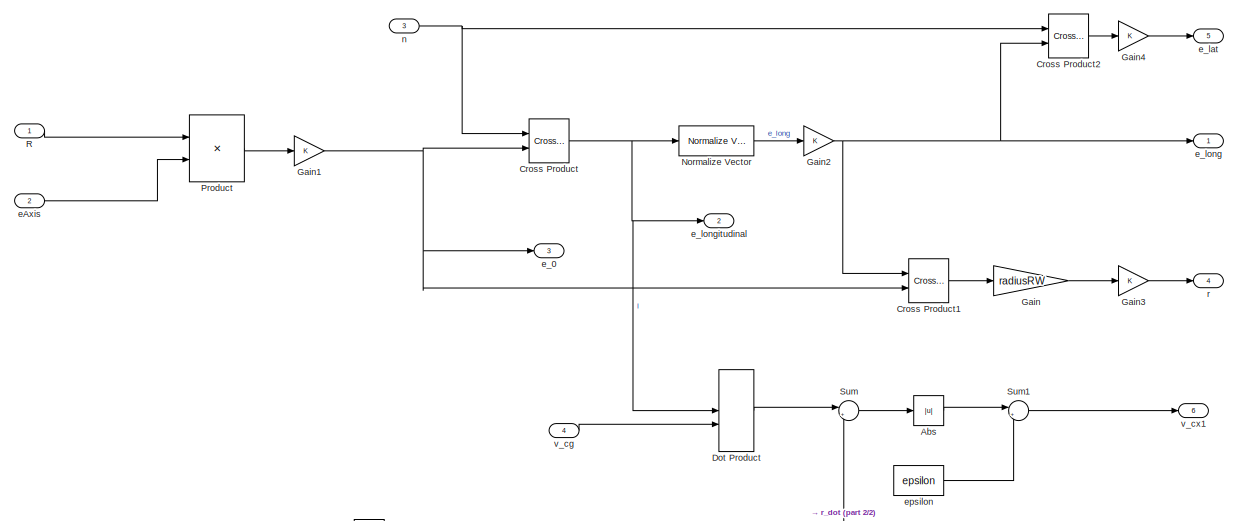
[diagram: Dynamics block/Wheel_vector_calculation - part 1/2, full width, top band]
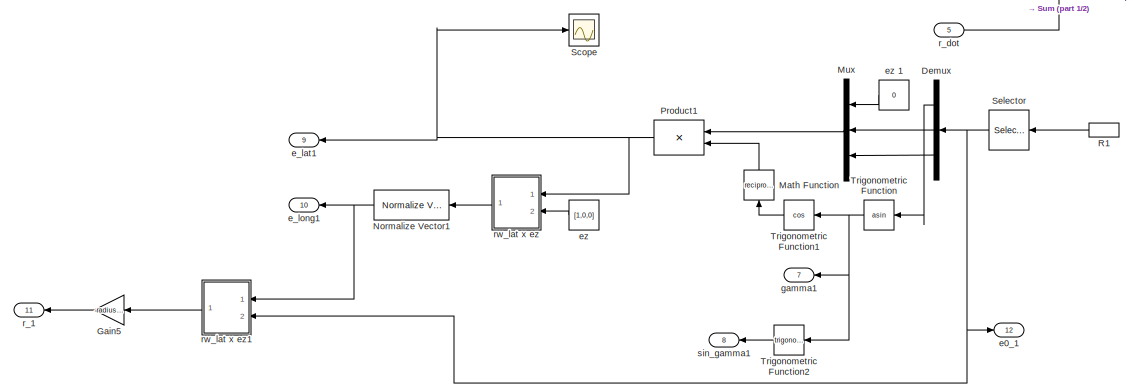
[diagram: Dynamics block/Wheel_vector_calculation - part 2/2, full width, bottom band]
BLOCK [SubSystem] Dynamics block/Wheel_vector_calculation
  Ports = [5, 12]
  RequestExecContextInheritance = off
  Variant = off
BLOCK [Abs] Dynamics block/Wheel_vector_calculation/Abs
  SaturateOnIntegerOverflow = off
BLOCK [Reference] Dynamics block/Wheel_vector_calculation/Cross Product  REF=Contact_Forces_Lib/Math/Cross
Product
  Ports = [2, 1]
  SourceBlock = Contact_Forces_Lib/Math/Cross\nProduct
  SourceType = SubSystem
BLOCK [Reference] Dynamics block/Wheel_vector_calculation/Cross Product1  REF=Contact_Forces_Lib/Math/Cross
Product
  Ports = [2, 1]
  SourceBlock = Contact_Forces_Lib/Math/Cross\nProduct
  SourceType = SubSystem
BLOCK [Reference] Dynamics block/Wheel_vector_calculation/Cross Product2  REF=Contact_Forces_Lib/Math/Cross
Product
  Ports = [2, 1]
  SourceBlock = Contact_Forces_Lib/Math/Cross\nProduct
  SourceType = SubSystem
BLOCK [Demux] Dynamics block/Wheel_vector_calculation/Demux
  Outputs = 3
  Ports = [1, 3]
BLOCK [DotProduct] Dynamics block/Wheel_vector_calculation/Dot Product
  OutDataTypeStr = Inherit: Inherit via internal rule
BLOCK [Gain] Dynamics block/Wheel_vector_calculation/Gain
  Gain = radiusRW
  OutDataTypeStr = Inherit: Inherit via internal rule
  ParamDataTypeStr = Inherit: Inherit via internal rule
  SaturateOnIntegerOverflow = off
BLOCK [Gain] Dynamics block/Wheel_vector_calculation/Gain1
  OutDataTypeStr = Inherit: Inherit via internal rule
  ParamDataTypeStr = Inherit: Inherit via internal rule
  SaturateOnIntegerOverflow = off
BLOCK [Gain] Dynamics block/Wheel_vector_calculation/Gain2
  OutDataTypeStr = Inherit: Inherit via internal rule
  ParamDataTypeStr = Inherit: Inherit via internal rule
  SaturateOnIntegerOverflow = off
BLOCK [Gain] Dynamics block/Wheel_vector_calculation/Gain3
  OutDataTypeStr = Inherit: Inherit via internal rule
  ParamDataTypeStr = Inherit: Inherit via internal rule
  SaturateOnIntegerOverflow = off
BLOCK [Gain] Dynamics block/Wheel_vector_calculation/Gain4
  OutDataTypeStr = Inherit: Inherit via internal rule
  ParamDataTypeStr = Inherit: Inherit via internal rule
  SaturateOnIntegerOverflow = off
BLOCK [Gain] Dynamics block/Wheel_vector_calculation/Gain5
  Gain = -radiusRW
  OutDataTypeStr = Inherit: Inherit via internal rule
  ParamDataTypeStr = Inherit: Inherit via internal rule
  SaturateOnIntegerOverflow = off
BLOCK [Math] Dynamics block/Wheel_vector_calculation/Math Function
  Operator = reciprocal
  Ports = [1, 1]
BLOCK [Mux] Dynamics block/Wheel_vector_calculation/Mux
  DisplayOption = bar
  Inputs = 3
  Ports = [3, 1]
BLOCK [Reference] Dynamics block/Wheel_vector_calculation/Normalize Vector  REF=vrlib/Utilities/Normalize Vector
  Ports = [1, 1]
  SourceBlock = vrlib/Utilities/Normalize Vector
  SourceProductBaseCode = VR
  SourceProductName = Simulink 3D Animation
  SourceType = Normalize Vector
BLOCK [Reference] Dynamics block/Wheel_vector_calculation/Normalize Vector1  REF=vrlib/Utilities/Normalize Vector
  Ports = [1, 1]
  SourceBlock = vrlib/Utilities/Normalize Vector
  SourceProductBaseCode = VR
  SourceProductName = Simulink 3D Animation
  SourceType = Normalize Vector
BLOCK [Product] Dynamics block/Wheel_vector_calculation/Product
  InputSameDT = off
  Multiplication = Matrix(*)
  OutDataTypeStr = Inherit: Inherit via internal rule
  Ports = [2, 1]
  RndMeth = Floor
  SaturateOnIntegerOverflow = off
BLOCK [Product] Dynamics block/Wheel_vector_calculation/Product1
  Ports = [2, 1]
  RndMeth = Floor
BLOCK [Inport] Dynamics block/Wheel_vector_calculation/R
  IconDisplay = Port number
BLOCK [InportShadow] Dynamics block/Wheel_vector_calculation/R1
  IconDisplay = Port number
BLOCK [Scope] Dynamics block/Wheel_vector_calculation/Scope
  NumInputPorts = 1
  Ports = [1]
  ScopeSpecificationString = Simulink.scopes.TimeScopeBlockCfg('CurrentConfiguration', extmgr.ConfigurationSet(extmgr.Configuration('Core','General UI',true),extmgr.Configuration('Core','Source UI',true),extmgr.Configuration('Sources','WiredSimulink',true,'DataLoggingVariableName','ScopeData4'),extmgr.Configuration('Visuals','Time Domain',true,'SerializedDisplays',{struct('MinYLimReal','-0.125','MaxYLimReal','1.125','YLabelRe...<+1413ch>
BLOCK [Selector] Dynamics block/Wheel_vector_calculation/Selector
  IndexOptions = Select all,Index vector (dialog)
  Indices = [4:6],3
  InputPortWidth = 9
  NumberOfDimensions = 2
  OutputSizes = 1,1
  Ports = [1, 1]
BLOCK [Sum] Dynamics block/Wheel_vector_calculation/Sum
  IconShape = round
  InputSameDT = off
  Inputs = |+-
  OutDataTypeStr = Inherit: Inherit via internal rule
  Ports = [2, 1]
  SaturateOnIntegerOverflow = off
BLOCK [Sum] Dynamics block/Wheel_vector_calculation/Sum1
  IconShape = round
  InputSameDT = off
  Inputs = |++
  OutDataTypeStr = Inherit: Inherit via internal rule
  Ports = [2, 1]
  SaturateOnIntegerOverflow = off
BLOCK [Trigonometry] Dynamics block/Wheel_vector_calculation/Trigonometric Function
  Operator = asin
  Ports = [1, 1]
BLOCK [Trigonometry] Dynamics block/Wheel_vector_calculation/Trigonometric Function1
  Operator = cos
  Ports = [1, 1]
BLOCK [Trigonometry] Dynamics block/Wheel_vector_calculation/Trigonometric Function2
  Ports = [1, 1]
BLOCK [Outport] Dynamics block/Wheel_vector_calculation/e0_1
  IconDisplay = Port number
  Port = 12
BLOCK [Inport] Dynamics block/Wheel_vector_calculation/eAxis
  IconDisplay = Port number
  Port = 2
BLOCK [Outport] Dynamics block/Wheel_vector_calculation/e_0
  IconDisplay = Port number
  Port = 3
BLOCK [Outport] Dynamics block/Wheel_vector_calculation/e_lat
  IconDisplay = Port number
  Port = 5
BLOCK [Outport] Dynamics block/Wheel_vector_calculation/e_lat1
  IconDisplay = Port number
  Port = 9
BLOCK [Outport] Dynamics block/Wheel_vector_calculation/e_long
  IconDisplay = Port number
BLOCK [Outport] Dynamics block/Wheel_vector_calculation/e_long1
  IconDisplay = Port number
  Port = 10
BLOCK [Outport] Dynamics block/Wheel_vector_calculation/e_longitudinal
  IconDisplay = Port number
  Port = 2
BLOCK [Constant] Dynamics block/Wheel_vector_calculation/epsilon
  Value = epsilon
BLOCK [Constant] Dynamics block/Wheel_vector_calculation/ez 
  Value = [1,0,0]
BLOCK [Constant] Dynamics block/Wheel_vector_calculation/ez 1
  Value = 0
BLOCK [Outport] Dynamics block/Wheel_vector_calculation/gamma1
  IconDisplay = Port number
  Port = 7
BLOCK [Inport] Dynamics block/Wheel_vector_calculation/n
  IconDisplay = Port number
  Port = 3
BLOCK [Outport] Dynamics block/Wheel_vector_calculation/r
  IconDisplay = Port number
  Port = 4
BLOCK [Outport] Dynamics block/Wheel_vector_calculation/r_1
  IconDisplay = Port number
  Port = 11
BLOCK [Inport] Dynamics block/Wheel_vector_calculation/r_dot
  IconDisplay = Port number
  Port = 5
BLOCK [SubSystem] Dynamics block/Wheel_vector_calculation/rw_lat x ez
  Ports = [2, 1]
  RequestExecContextInheritance = off
  ShowPortLabels = none
  Variant = off
BLOCK [Product] Dynamics block/Wheel_vector_calculation/rw_lat x ez/Product
  Ports = [2, 1]
BLOCK [Product] Dynamics block/Wheel_vector_calculation/rw_lat x ez/Product1
  Ports = [2, 1]
BLOCK [Selector] Dynamics block/Wheel_vector_calculation/rw_lat x ez/Selector
  IndexOptions = Index vector (dialog)
  Indices = [2 3 1]
  InputPortWidth = 3
  OutputSizes = 1
  Ports = [1, 1]
BLOCK [Selector] Dynamics block/Wheel_vector_calculation/rw_lat x ez/Selector1
  IndexOptions = Index vector (dialog)
  Indices = [3 1 2]
  InputPortWidth = 3
  OutputSizes = 1
  Ports = [1, 1]
BLOCK [Selector] Dynamics block/Wheel_vector_calculation/rw_lat x ez/Selector2
  IndexOptions = Index vector (dialog)
  Indices = [2 3 1]
  InputPortWidth = 3
  OutputSizes = 1
  Ports = [1, 1]
BLOCK [Selector] Dynamics block/Wheel_vector_calculation/rw_lat x ez/Selector3
  IndexOptions = Index vector (dialog)
  Indices = [3 1 2]
  InputPortWidth = 3
  OutputSizes = 1
  Ports = [1, 1]
BLOCK [Sum] Dynamics block/Wheel_vector_calculation/rw_lat x ez/Sum
  IconShape = round
  Inputs = +|-
  Ports = [2, 1]
BLOCK [Inport] Dynamics block/Wheel_vector_calculation/rw_lat x ez/a(1) a(2) a(3)
  IconDisplay = Port number
BLOCK [Inport] Dynamics block/Wheel_vector_calculation/rw_lat x ez/b(1) b(2) b(3)
  IconDisplay = Port number
  Port = 2
BLOCK [Outport] Dynamics block/Wheel_vector_calculation/rw_lat x ez/c(1) c(2) c(3)
  IconDisplay = Port number
  InitialOutput = 0
BLOCK [SubSystem] Dynamics block/Wheel_vector_calculation/rw_lat x ez1
  Ports = [2, 1]
  RequestExecContextInheritance = off
  ShowPortLabels = none
  Variant = off
BLOCK [Product] Dynamics block/Wheel_vector_calculation/rw_lat x ez1/Product
  Ports = [2, 1]
BLOCK [Product] Dynamics block/Wheel_vector_calculation/rw_lat x ez1/Product1
  Ports = [2, 1]
BLOCK [Selector] Dynamics block/Wheel_vector_calculation/rw_lat x ez1/Selector
  IndexOptions = Index vector (dialog)
  Indices = [2 3 1]
  InputPortWidth = 3
  OutputSizes = 1
  Ports = [1, 1]
BLOCK [Selector] Dynamics block/Wheel_vector_calculation/rw_lat x ez1/Selector1
  IndexOptions = Index vector (dialog)
  Indices = [3 1 2]
  InputPortWidth = 3
  OutputSizes = 1
  Ports = [1, 1]
BLOCK [Selector] Dynamics block/Wheel_vector_calculation/rw_lat x ez1/Selector2
  IndexOptions = Index vector (dialog)
  Indices = [2 3 1]
  InputPortWidth = 3
  OutputSizes = 1
  Ports = [1, 1]
BLOCK [Selector] Dynamics block/Wheel_vector_calculation/rw_lat x ez1/Selector3
  IndexOptions = Index vector (dialog)
  Indices = [3 1 2]
  InputPortWidth = 3
  OutputSizes = 1
  Ports = [1, 1]
BLOCK [Sum] Dynamics block/Wheel_vector_calculation/rw_lat x ez1/Sum
  IconShape = round
  Inputs = +|-
  Ports = [2, 1]
BLOCK [Inport] Dynamics block/Wheel_vector_calculation/rw_lat x ez1/a(1) a(2) a(3)
  IconDisplay = Port number
BLOCK [Inport] Dynamics block/Wheel_vector_calculation/rw_lat x ez1/b(1) b(2) b(3)
  IconDisplay = Port number
  Port = 2
BLOCK [Outport] Dynamics block/Wheel_vector_calculation/rw_lat x ez1/c(1) c(2) c(3)
  IconDisplay = Port number
  InitialOutput = 0
BLOCK [Outport] Dynamics block/Wheel_vector_calculation/sin_gamma1
  IconDisplay = Port number
  Port = 8
BLOCK [Inport] Dynamics block/Wheel_vector_calculation/v_cg
  IconDisplay = Port number
  Port = 4
BLOCK [Outport] Dynamics block/Wheel_vector_calculation/v_cx1
  IconDisplay = Port number
  Port = 6
BLOCK [Constant] Dynamics block/plane normal
  Value = [1;0;0]
BLOCK [SubSystem] Dynamics block/propagation velocity V_cx
  Ports = [5, 2]
  RequestExecContextInheritance = off
  Variant = off
BLOCK [Abs] Dynamics block/propagation velocity V_cx/Abs
  SaturateOnIntegerOverflow = off
BLOCK [Reference] Dynamics block/propagation velocity V_cx/Compare To Constant  REF=simulink/Logic and Bit
Operations/Compare
To Constant
  Ports = [1, 1]
  SourceBlock = simulink/Logic and Bit\nOperations/Compare\nTo Constant
  SourceProductBaseCode = SL
  SourceProductName = Simulink
  SourceType = Compare To Constant
BLOCK [Constant] Dynamics block/propagation velocity V_cx/Constant
  Value = epsilon
BLOCK [Gain] Dynamics block/propagation velocity V_cx/Gain
  Gain = -180/pi
  OutDataTypeStr = Inherit: Inherit via internal rule
  ParamDataTypeStr = Inherit: Inherit via internal rule
  SaturateOnIntegerOverflow = off
BLOCK [Scope] Dynamics block/propagation velocity V_cx/Scope
  NumInputPorts = 1
  Ports = [1]
  ScopeSpecificationString = Simulink.scopes.TimeScopeBlockCfg('CurrentConfiguration', extmgr.ConfigurationSet(extmgr.Configuration('Core','General UI',true),extmgr.Configuration('Core','Source UI',true),extmgr.Configuration('Sources','WiredSimulink',true,'DataLoggingVariableName','ScopeData4'),extmgr.Configuration('Visuals','Time Domain',true,'SerializedDisplays',{struct('MinYLimReal','-73.125','MaxYLimReal','8.125','YLabelR...<+1410ch>
BLOCK [Stop] Dynamics block/propagation velocity V_cx/Stop Simulation
BLOCK [Sum] Dynamics block/propagation velocity V_cx/Sum
  IconShape = round
  InputSameDT = off
  Inputs = |++
  OutDataTypeStr = Inherit: Inherit via internal rule
  Ports = [2, 1]
  SaturateOnIntegerOverflow = off
BLOCK [SubSystem] Dynamics block/propagation velocity V_cx/V_c
  Ports = [5, 1]
  RequestExecContextInheritance = off
  Variant = off
BLOCK [DotProduct] Dynamics block/propagation velocity V_cx/V_c/Dot Product
  OutDataTypeStr = Inherit: Inherit via internal rule
BLOCK [DotProduct] Dynamics block/propagation velocity V_cx/V_c/Dot Product2
  OutDataTypeStr = Inherit: Inherit via internal rule
BLOCK [Gain] Dynamics block/propagation velocity V_cx/V_c/Gain
  Gain = radiusRW
  OutDataTypeStr = Inherit: Inherit via internal rule
  ParamDataTypeStr = Inherit: Inherit via internal rule
  SaturateOnIntegerOverflow = off
BLOCK [Product] Dynamics block/propagation velocity V_cx/V_c/Product
  InputSameDT = off
  OutDataTypeStr = Inherit: Inherit via internal rule
  Ports = [2, 1]
  RndMeth = Floor
  SaturateOnIntegerOverflow = off
BLOCK [Sum] Dynamics block/propagation velocity V_cx/V_c/Sum
  IconShape = round
  InputSameDT = off
  Inputs = |++
  OutDataTypeStr = Inherit: Inherit via internal rule
  Ports = [2, 1]
  SaturateOnIntegerOverflow = off
BLOCK [Outport] Dynamics block/propagation velocity V_cx/V_c/V_cx
  IconDisplay = Port number
BLOCK [Inport] Dynamics block/propagation velocity V_cx/V_c/e_long
  IconDisplay = Port number
  Port = 2
BLOCK [Inport] Dynamics block/propagation velocity V_cx/V_c/n
  IconDisplay = Port number
  Port = 5
BLOCK [Inport] Dynamics block/propagation velocity V_cx/V_c/omega
  IconDisplay = Port number
  Port = 4
BLOCK [Inport] Dynamics block/propagation velocity V_cx/V_c/sin_gamma
  IconDisplay = Port number
  Port = 3
BLOCK [Inport] Dynamics block/propagation velocity V_cx/V_c/v_cg
  IconDisplay = Port number
BLOCK [Outport] Dynamics block/propagation velocity V_cx/V_cx
  IconDisplay = Port number
BLOCK [Inport] Dynamics block/propagation velocity V_cx/e_0
  IconDisplay = Port number
  Port = 3
BLOCK [Inport] Dynamics block/propagation velocity V_cx/e_long
  IconDisplay = Port number
BLOCK [Inport] Dynamics block/propagation velocity V_cx/n
  IconDisplay = Port number
  Port = 2
BLOCK [InportShadow] Dynamics block/propagation velocity V_cx/n1
  IconDisplay = Port number
  Port = 2
BLOCK [Inport] Dynamics block/propagation velocity V_cx/omega
  IconDisplay = Port number
  Port = 4
BLOCK [Outport] Dynamics block/propagation velocity V_cx/s_gamma
  IconDisplay = Port number
  Port = 2
BLOCK [SubSystem] Dynamics block/propagation velocity V_cx/sin_gamma
  Ports = [2, 2]
  RequestExecContextInheritance = off
  Variant = off
BLOCK [DotProduct] Dynamics block/propagation velocity V_cx/sin_gamma/Dot Product
  OutDataTypeStr = Inherit: Inherit via internal rule
BLOCK [Trigonometry] Dynamics block/propagation velocity V_cx/sin_gamma/Trigonometric Function
  Operator = asin
  Ports = [1, 1]
BLOCK [Inport] Dynamics block/propagation velocity V_cx/sin_gamma/e_0
  IconDisplay = Port number
  Port = 2
BLOCK [Outport] Dynamics block/propagation velocity V_cx/sin_gamma/gamma
  IconDisplay = Port number
BLOCK [Inport] Dynamics block/propagation velocity V_cx/sin_gamma/n
  IconDisplay = Port number
BLOCK [Outport] Dynamics block/propagation velocity V_cx/sin_gamma/sin_gamma
  IconDisplay = Port number
  Port = 2
BLOCK [Inport] Dynamics block/propagation velocity V_cx/v_cg
  IconDisplay = Port number
  Port = 5
BLOCK [SubSystem] Dynamics block/rDot
  Ports = [6, 2]
  RequestExecContextInheritance = off
  Variant = off
BLOCK [Reference] Dynamics block/rDot/Cross Product  REF=Contact_Forces_Lib/Math/Cross
Product
  Commented = on
  Ports = [2, 1]
  SourceBlock = Contact_Forces_Lib/Math/Cross\nProduct
  SourceType = SubSystem
BLOCK [DotProduct] Dynamics block/rDot/Dot Product
  Commented = on
  OutDataTypeStr = Inherit: Inherit via internal rule
BLOCK [DotProduct] Dynamics block/rDot/Dot Product1
  Commented = on
  OutDataTypeStr = Inherit: Inherit via internal rule
BLOCK [DotProduct] Dynamics block/rDot/Dot Product2
  Commented = on
  OutDataTypeStr = Inherit: Inherit via internal rule
BLOCK [Gain] Dynamics block/rDot/Gain
  Commented = on
  Gain = radiusRW
  OutDataTypeStr = Inherit: Inherit via internal rule
  ParamDataTypeStr = Inherit: Inherit via internal rule
  SaturateOnIntegerOverflow = off
BLOCK [Product] Dynamics block/rDot/Product
  Commented = on
  InputSameDT = off
  OutDataTypeStr = Inherit: Inherit via internal rule
  Ports = [2, 1]
  RndMeth = Floor
  SaturateOnIntegerOverflow = off
BLOCK [Product] Dynamics block/rDot/Product1
  Commented = on
  InputSameDT = off
  Inputs = */
  OutDataTypeStr = Inherit: Inherit via internal rule
  Ports = [2, 1]
  RndMeth = Floor
  SaturateOnIntegerOverflow = off
BLOCK [Sqrt] Dynamics block/rDot/Sqrt
  Commented = on
BLOCK [SubSystem] Dynamics block/rDot/Subsystem
  Ports = [5, 1]
  RequestExecContextInheritance = off
  Variant = off
BLOCK [Reference] Dynamics block/rDot/Subsystem/Cross Product  REF=Contact_Forces_Lib/Math/Cross
Product
  Ports = [2, 1]
  SourceBlock = Contact_Forces_Lib/Math/Cross\nProduct
  SourceType = SubSystem
BLOCK [DotProduct] Dynamics block/rDot/Subsystem/Dot Product
  OutDataTypeStr = Inherit: Inherit via internal rule
BLOCK [DotProduct] Dynamics block/rDot/Subsystem/Dot Product1
  OutDataTypeStr = Inherit: Inherit via internal rule
BLOCK [Product] Dynamics block/rDot/Subsystem/Product
  InputSameDT = off
  OutDataTypeStr = Inherit: Inherit via internal rule
  Ports = [2, 1]
  RndMeth = Floor
  SaturateOnIntegerOverflow = off
BLOCK [Product] Dynamics block/rDot/Subsystem/Product1
  InputSameDT = off
  Inputs = */
  OutDataTypeStr = Inherit: Inherit via internal rule
  Ports = [2, 1]
  RndMeth = Floor
  SaturateOnIntegerOverflow = off
BLOCK [Sqrt] Dynamics block/rDot/Subsystem/Sqrt
BLOCK [Inport] Dynamics block/rDot/Subsystem/e_0
  IconDisplay = Port number
  Port = 4
BLOCK [Inport] Dynamics block/rDot/Subsystem/e_long
  IconDisplay = Port number
  Port = 5
BLOCK [Inport] Dynamics block/rDot/Subsystem/l
  IconDisplay = Port number
  Port = 3
BLOCK [Inport] Dynamics block/rDot/Subsystem/omega
  IconDisplay = Port number
BLOCK [Outport] Dynamics block/rDot/Subsystem/rDot
  IconDisplay = Port number
BLOCK [Inport] Dynamics block/rDot/Subsystem/sin_gamma
  IconDisplay = Port number
  Port = 2
BLOCK [InportShadow] Dynamics block/rDot/e0_1
  IconDisplay = Port number
  Port = 4
BLOCK [Inport] Dynamics block/rDot/e_0
  IconDisplay = Port number
  Port = 4
BLOCK [Inport] Dynamics block/rDot/e_long
  IconDisplay = Port number
  Port = 5
BLOCK [InportShadow] Dynamics block/rDot/e_long1
  IconDisplay = Port number
  Port = 5
BLOCK [Inport] Dynamics block/rDot/l
  IconDisplay = Port number
  Port = 3
BLOCK [InportShadow] Dynamics block/rDot/l1
  IconDisplay = Port number
  Port = 3
BLOCK [Inport] Dynamics block/rDot/n
  IconDisplay = Port number
  Port = 6
BLOCK [Inport] Dynamics block/rDot/omega
  IconDisplay = Port number
BLOCK [InportShadow] Dynamics block/rDot/omega1
  IconDisplay = Port number
BLOCK [Outport] Dynamics block/rDot/rDot
  IconDisplay = Port number
BLOCK [Outport] Dynamics block/rDot/rDot1
  IconDisplay = Port number
  Port = 2
BLOCK [Inport] Dynamics block/rDot/sin_gamma
  IconDisplay = Port number
  Port = 2
BLOCK [SubSystem] Dynamics block/simple slip model
  Ports = [4, 2]
  RequestExecContextInheritance = off
  Variant = off
BLOCK [DotProduct] Dynamics block/simple slip model/Dot Product
  OutDataTypeStr = Inherit: Inherit via internal rule
BLOCK [DotProduct] Dynamics block/simple slip model/Dot Product1
  OutDataTypeStr = Inherit: Inherit via internal rule
BLOCK [Outport] Dynamics block/simple slip model/Fy
  IconDisplay = Port number
BLOCK [Outport] Dynamics block/simple slip model/Fz
  IconDisplay = Port number
  Port = 2
BLOCK [Gain] Dynamics block/simple slip model/Gain
  OutDataTypeStr = Inherit: Inherit via internal rule
  ParamDataTypeStr = Inherit: Inherit via internal rule
  SaturateOnIntegerOverflow = off
BLOCK [Gain] Dynamics block/simple slip model/Gain1
  OutDataTypeStr = Inherit: Inherit via internal rule
  ParamDataTypeStr = Inherit: Inherit via internal rule
  SaturateOnIntegerOverflow = off
BLOCK [Gain] Dynamics block/simple slip model/Gain2
  OutDataTypeStr = Inherit: Inherit via internal rule
  ParamDataTypeStr = Inherit: Inherit via internal rule
  SaturateOnIntegerOverflow = off
BLOCK [Gain] Dynamics block/simple slip model/Gain3
  Gain = -C_F_kappa
  OutDataTypeStr = Inherit: Inherit via internal rule
  ParamDataTypeStr = Inherit: Inherit via internal rule
  SaturateOnIntegerOverflow = off
BLOCK [Gain] Dynamics block/simple slip model/Gain4
  Gain = -C_F_alpha
  OutDataTypeStr = Inherit: Inherit via internal rule
  ParamDataTypeStr = Inherit: Inherit via internal rule
  SaturateOnIntegerOverflow = off
BLOCK [Product] Dynamics block/simple slip model/Product
  InputSameDT = off
  Inputs = */
  OutDataTypeStr = Inherit: Inherit via internal rule
  Ports = [2, 1]
  RndMeth = Floor
  SaturateOnIntegerOverflow = off
BLOCK [Product] Dynamics block/simple slip model/Product1
  InputSameDT = off
  Inputs = */
  OutDataTypeStr = Inherit: Inherit via internal rule
  Ports = [2, 1]
  RndMeth = Floor
  SaturateOnIntegerOverflow = off
BLOCK [Product] Dynamics block/simple slip model/Product2
  InputSameDT = off
  OutDataTypeStr = Inherit: Inherit via internal rule
  Ports = [2, 1]
  RndMeth = Floor
  SaturateOnIntegerOverflow = off
BLOCK [Product] Dynamics block/simple slip model/Product3
  InputSameDT = off
  OutDataTypeStr = Inherit: Inherit via internal rule
  Ports = [2, 1]
  RndMeth = Floor
  SaturateOnIntegerOverflow = off
BLOCK [Scope] Dynamics block/simple slip model/Scope
  NumInputPorts = 1
  Ports = [1]
  ScopeSpecificationString = Simulink.scopes.TimeScopeBlockCfg('CurrentConfiguration', extmgr.ConfigurationSet(extmgr.Configuration('Core','General UI',true),extmgr.Configuration('Core','Source UI',true),extmgr.Configuration('Sources','WiredSimulink',true,'DataLoggingVariableName','ScopeData6'),extmgr.Configuration('Visuals','Time Domain',true,'SerializedDisplays',{struct('MinYLimReal','-0.000000008','MaxYLimReal','0.00000007...<+1447ch>
BLOCK [Scope] Dynamics block/simple slip model/Scope1
  NumInputPorts = 1
  Ports = [1]
  ScopeSpecificationString = Simulink.scopes.TimeScopeBlockCfg('CurrentConfiguration', extmgr.ConfigurationSet(extmgr.Configuration('Core','General UI',true),extmgr.Configuration('Core','Source UI',true),extmgr.Configuration('Sources','WiredSimulink',true,'DataLoggingVariableName','ScopeData7'),extmgr.Configuration('Visuals','Time Domain',true,'SerializedDisplays',{struct('MinYLimReal','-0.00000000007','MaxYLimReal','0.000000...<+1493ch>
BLOCK [Scope] Dynamics block/simple slip model/Scope2
  NumInputPorts = 1
  Ports = [1]
  ScopeSpecificationString = Simulink.scopes.TimeScopeBlockCfg('CurrentConfiguration', extmgr.ConfigurationSet(extmgr.Configuration('Core','General UI',true),extmgr.Configuration('Core','Source UI',true),extmgr.Configuration('Sources','WiredSimulink',true,'DataLoggingVariableName','ScopeData8'),extmgr.Configuration('Visuals','Time Domain',true,'SerializedDisplays',{struct('MinYLimReal','-0.30211','MaxYLimReal','0.11512','YLab...<+1438ch>
BLOCK [Trigonometry] Dynamics block/simple slip model/Trigonometric Function
  Commented = through
  Operator = atan
  Ports = [1, 1]
BLOCK [Inport] Dynamics block/simple slip model/V_cx
  IconDisplay = Port number
  Port = 2
BLOCK [InportShadow] Dynamics block/simple slip model/V_cx1
  IconDisplay = Port number
  Port = 2
BLOCK [Inport] Dynamics block/simple slip model/V_s
  IconDisplay = Port number
BLOCK [InportShadow] Dynamics block/simple slip model/V_s1
  IconDisplay = Port number
BLOCK [Inport] Dynamics block/simple slip model/e_lat
  IconDisplay = Port number
  Port = 4
BLOCK [InportShadow] Dynamics block/simple slip model/e_lat1
  IconDisplay = Port number
  Port = 4
BLOCK [Inport] Dynamics block/simple slip model/e_long
  IconDisplay = Port number
  Port = 3
BLOCK [InportShadow] Dynamics block/simple slip model/e_long1
  IconDisplay = Port number
  Port = 3
BLOCK [SubSystem] Dynamics block/verticle force
  Ports = [4, 4]
  RequestExecContextInheritance = off
  Variant = off
BLOCK [Constant] Dynamics block/verticle force/Constant
  Value = [0 0 0]'
BLOCK [DotProduct] Dynamics block/verticle force/Dot Product
  OutDataTypeStr = Inherit: Inherit via internal rule
BLOCK [DotProduct] Dynamics block/verticle force/Dot Product1
  OutDataTypeStr = Inherit: Inherit via internal rule
BLOCK [Outport] Dynamics block/verticle force/Fn_3D
  IconDisplay = Port number
  Port = 3
BLOCK [Outport] Dynamics block/verticle force/Fn_disk
  IconDisplay = Port number
BLOCK [Outport] Dynamics block/verticle force/Fn_scalar
  IconDisplay = Port number
  Port = 2
BLOCK [Outport] Dynamics block/verticle force/Fn_value
  IconDisplay = Port number
  Port = 4
BLOCK [Gain] Dynamics block/verticle force/Gain
  Gain = k_contact
  OutDataTypeStr = Inherit: Inherit via internal rule
  ParamDataTypeStr = Inherit: Inherit via internal rule
  SaturateOnIntegerOverflow = off
BLOCK [Gain] Dynamics block/verticle force/Gain1
  Gain = b_contact
  OutDataTypeStr = Inherit: Inherit via internal rule
  ParamDataTypeStr = Inherit: Inherit via internal rule
  SaturateOnIntegerOverflow = off
BLOCK [Gain] Dynamics block/verticle force/Gain2
  Gain = -1
  OutDataTypeStr = Inherit: Inherit via internal rule
  ParamDataTypeStr = Inherit: Inherit via internal rule
  SaturateOnIntegerOverflow = off
BLOCK [Reference] Dynamics block/verticle force/Linear force law  REF=Contact_Forces_Lib/Force Law/Linear
  Ports = [2, 2]
  SourceBlock = Contact_Forces_Lib/Force Law/Linear
  SourceType = Linear Force Law
BLOCK [SubSystem] Dynamics block/verticle force/Normal force
  Ports = [3, 2]
  RequestExecContextInheritance = off
  Variant = off
BLOCK [Sum] Dynamics block/verticle force/Normal force/Add
  InputSameDT = off
  OutDataTypeStr = Inherit: Inherit via internal rule
  Ports = [2, 1]
  SaturateOnIntegerOverflow = off
BLOCK [Inport] Dynamics block/verticle force/Normal force/DampF
  IconDisplay = Port number
  Port = 3
BLOCK [Outport] Dynamics block/verticle force/Normal force/Fn_Disk
  IconDisplay = Port number
BLOCK [Outport] Dynamics block/verticle force/Normal force/Fn_value
  IconDisplay = Port number
  Port = 2
BLOCK [Product] Dynamics block/verticle force/Normal force/Product
  InputSameDT = off
  OutDataTypeStr = Inherit: Inherit via internal rule
  Ports = [2, 1]
  RndMeth = Floor
  SaturateOnIntegerOverflow = off
BLOCK [Inport] Dynamics block/verticle force/Normal force/SprF
  IconDisplay = Port number
  Port = 2
BLOCK [Inport] Dynamics block/verticle force/Normal force/n
  IconDisplay = Port number
BLOCK [SubSystem] Dynamics block/verticle force/Penetration
  Ports = [4, 4]
  RequestExecContextInheritance = off
  Variant = off
BLOCK [Abs] Dynamics block/verticle force/Penetration/Abs
  SaturateOnIntegerOverflow = off
  ZeroCross = off
BLOCK [Abs] Dynamics block/verticle force/Penetration/Abs1
  SaturateOnIntegerOverflow = off
BLOCK [Constant] Dynamics block/verticle force/Penetration/Constant
  Commented = on
  Value = [radiusRW;0;0]
BLOCK [DeadZone] Dynamics block/verticle force/Penetration/Dead Zone
  LowerValue = -inf
  UpperValue = 0
BLOCK [Demux] Dynamics block/verticle force/Penetration/Demux
  DisplayOption = bar
  Outputs = 3
  Ports = [1, 3]
BLOCK [Demux] Dynamics block/verticle force/Penetration/Demux1
  DisplayOption = bar
  Outputs = 3
  Ports = [1, 3]
BLOCK [DotProduct] Dynamics block/verticle force/Penetration/Dot Product
  OutDataTypeStr = Inherit: Inherit via internal rule
BLOCK [Gain] Dynamics block/verticle force/Penetration/Gain2
  Gain = -1
  OutDataTypeStr = Inherit: Inherit via internal rule
  ParamDataTypeStr = Inherit: Inherit via internal rule
  SaturateOnIntegerOverflow = off
BLOCK [Inport] Dynamics block/verticle force/Penetration/In1
  IconDisplay = Port number
  Port = 3
BLOCK [Inport] Dynamics block/verticle force/Penetration/In2
  IconDisplay = Port number
  Port = 4
BLOCK [Outport] Dynamics block/verticle force/Penetration/Pen
  IconDisplay = Port number
  Port = 2
BLOCK [Outport] Dynamics block/verticle force/Penetration/Pen_vel
  IconDisplay = Port number
  Port = 3
BLOCK [Outport] Dynamics block/verticle force/Penetration/Pos_sign
  IconDisplay = Port number
BLOCK [Product] Dynamics block/verticle force/Penetration/Product
  InputSameDT = off
  OutDataTypeStr = Inherit: Inherit via internal rule
  Ports = [2, 1]
  RndMeth = Floor
  SaturateOnIntegerOverflow = off
BLOCK [Signum] Dynamics block/verticle force/Penetration/Sign vx
  ZeroCross = off
BLOCK [Signum] Dynamics block/verticle force/Penetration/Sign x
  ZeroCross = off
BLOCK [Sum] Dynamics block/verticle force/Penetration/Sum
  InputSameDT = off
  Inputs = +-
  OutDataTypeStr = Inherit: Inherit via internal rule
  Ports = [2, 1]
  SaturateOnIntegerOverflow = off
BLOCK [Terminator] Dynamics block/verticle force/Penetration/Terminator
BLOCK [Terminator] Dynamics block/verticle force/Penetration/Terminator1
BLOCK [Terminator] Dynamics block/verticle force/Penetration/Terminator2
BLOCK [Terminator] Dynamics block/verticle force/Penetration/Terminator3
BLOCK [Outport] Dynamics block/verticle force/Penetration/Vel_sign
  IconDisplay = Port number
  Port = 4
BLOCK [Inport] Dynamics block/verticle force/Penetration/n
  IconDisplay = Port number
  Port = 2
BLOCK [Inport] Dynamics block/verticle force/Penetration/r
  IconDisplay = Port number
BLOCK [Product] Dynamics block/verticle force/Product
  InputSameDT = off
  OutDataTypeStr = Inherit: Inherit via internal rule
  Ports = [2, 1]
  RndMeth = Floor
  SaturateOnIntegerOverflow = off
BLOCK [Product] Dynamics block/verticle force/Product1
  InputSameDT = off
  OutDataTypeStr = Inherit: Inherit via internal rule
  Ports = [2, 1]
  RndMeth = Floor
  SaturateOnIntegerOverflow = off
BLOCK [Product] Dynamics block/verticle force/Product2
  InputSameDT = off
  OutDataTypeStr = Inherit: Inherit via internal rule
  Ports = [2, 1]
  RndMeth = Floor
  SaturateOnIntegerOverflow = off
BLOCK [Scope] Dynamics block/verticle force/Scope1
  NumInputPorts = 1
  Ports = [1]
  ScopeSpecificationString = Simulink.scopes.TimeScopeBlockCfg('CurrentConfiguration', extmgr.ConfigurationSet(extmgr.Configuration('Core','General UI',true),extmgr.Configuration('Core','Source UI',true),extmgr.Configuration('Sources','WiredSimulink',true,'DataLoggingVariableName','ScopeData3'),extmgr.Configuration('Visuals','Time Domain',true,'SerializedDisplays',{struct('MinYLimReal','-3.8386','MaxYLimReal','34.54738','YLab...<+1468ch>
BLOCK [Sum] Dynamics block/verticle force/Sum
  IconShape = round
  InputSameDT = off
  Inputs = |++
  OutDataTypeStr = Inherit: Inherit via internal rule
  Ports = [2, 1]
  SaturateOnIntegerOverflow = off
BLOCK [Sum] Dynamics block/verticle force/Sum1
  IconShape = round
  InputSameDT = off
  Inputs = |+-
  OutDataTypeStr = Inherit: Inherit via internal rule
  Ports = [2, 1]
  SaturateOnIntegerOverflow = off
BLOCK [Sum] Dynamics block/verticle force/Sum2
  IconShape = round
  InputSameDT = off
  Inputs = |++
  OutDataTypeStr = Inherit: Inherit via internal rule
  Ports = [2, 1]
  SaturateOnIntegerOverflow = off
BLOCK [Inport] Dynamics block/verticle force/n
  IconDisplay = Port number
  Port = 4
BLOCK [InportShadow] Dynamics block/verticle force/n1
  IconDisplay = Port number
  Port = 4
BLOCK [Inport] Dynamics block/verticle force/r
  IconDisplay = Port number
  Port = 3
BLOCK [InportShadow] Dynamics block/verticle force/r1
  IconDisplay = Port number
  Port = 3
BLOCK [Inport] Dynamics block/verticle force/v_cg
  IconDisplay = Port number
  Port = 2
BLOCK [InportShadow] Dynamics block/verticle force/v_cg1
  IconDisplay = Port number
  Port = 2
BLOCK [Inport] Dynamics block/verticle force/x_cg
  IconDisplay = Port number
BLOCK [InportShadow] Dynamics block/verticle force/x_cg1
  IconDisplay = Port number
BLOCK [Integrator] Integrator
  Ports = [1, 1]
BLOCK [Reference] Mechanism Configuration  REF=sm_lib/Utilities/Mechanism
Configuration
  Ports = [0, 0, 0, 0, 0, 0, 1]
  SourceBlock = sm_lib/Utilities/Mechanism\nConfiguration
  SourceProductBaseCode = MS
  SourceProductName = Simscape Multibody
  SourceType = Mechanism\nConfiguration
BLOCK [Reference] PS-Simulink Converter  REF=nesl_utility/PS-Simulink
Converter
  Ports = [0, 1, 0, 0, 0, 1]
  SourceBlock = nesl_utility/PS-Simulink\nConverter
  SourceProductBaseCode = SS
  SourceProductName = Simscape
  SourceType = PS-Simulink\nConverter
BLOCK [Reference] PS-Simulink Converter1  REF=nesl_utility/PS-Simulink
Converter
  Ports = [0, 1, 0, 0, 0, 1]
  SourceBlock = nesl_utility/PS-Simulink\nConverter
  SourceProductBaseCode = SS
  SourceProductName = Simscape
  SourceType = PS-Simulink\nConverter
BLOCK [Reference] Plane  REF=sm_lib/Body Elements/Solid
  Ports = [0, 0, 0, 0, 0, 0, 1]
  SourceBlock = sm_lib/Body Elements/Solid
  SourceProductBaseCode = MS
  SourceProductName = Simscape Multibody
  SourceType = Solid
BLOCK [Reference] Rigid Transform  REF=sm_lib/Frames and
Transforms/Rigid
Transform
  Ports = [0, 0, 0, 0, 0, 1, 1]
  SourceBlock = sm_lib/Frames and\nTransforms/Rigid\nTransform
  SourceProductBaseCode = MS
  SourceProductName = Simscape Multibody
  SourceType = Rigid\nTransform
BLOCK [Reference] Simulink-PS Converter  REF=nesl_utility/Simulink-PS
Converter
  Ports = [1, 0, 0, 0, 0, 0, 1]
  SourceBlock = nesl_utility/Simulink-PS\nConverter
  SourceProductBaseCode = SS
  SourceProductName = Simscape
  SourceType = Simulink-PS\nConverter
BLOCK [Reference] Solver Configuration  REF=nesl_utility/Solver
Configuration
  Ports = [0, 0, 0, 0, 0, 0, 1]
  SourceBlock = nesl_utility/Solver\nConfiguration
  SourceProductBaseCode = SS
  SourceProductName = Simscape
  SourceType = Solver\nConfiguration
BLOCK [Reference] World Frame  REF=sm_lib/Frames and
Transforms/World Frame
  Ports = [0, 0, 0, 0, 0, 0, 1]
  SourceBlock = sm_lib/Frames and\nTransforms/World Frame
  SourceProductBaseCode = MS
  SourceProductName = Simscape Multibody
  SourceType = World Frame
BLOCK [Scope] velocity
  NumInputPorts = 1
  Ports = [1]
  ScopeSpecificationString = Simulink.scopes.TimeScopeBlockCfg('CurrentConfiguration', extmgr.ConfigurationSet(extmgr.Configuration('Core','General UI',true),extmgr.Configuration('Core','Source UI',true),extmgr.Configuration('Sources','WiredSimulink',true,'DataLoggingVariableName','ScopeData11'),extmgr.Configuration('Visuals','Time Domain',true,'SerializedDisplays',{struct('MinYLimReal','-191.02437','MaxYLimReal','32.87726','...<+1468ch>
BLOCK [Scope] yaw_angle
  NumInputPorts = 1
  Ports = [1]
  ScopeSpecificationString = Simulink.scopes.TimeScopeBlockCfg('CurrentConfiguration', extmgr.ConfigurationSet(extmgr.Configuration('Core','General UI',true),extmgr.Configuration('Core','Source UI',true),extmgr.Configuration('Sources','WiredSimulink',true,'DataLoggingVariableName','ScopeData5'),extmgr.Configuration('Visuals','Time Domain',true,'SerializedDisplays',{struct('MinYLimReal','-0.23856','MaxYLimReal','0.02651','YLab...<+1442ch>
BLOCK [Scope] yaw_rate
  NumInputPorts = 1
  Ports = [1]
  ScopeSpecificationString = Simulink.scopes.TimeScopeBlockCfg('CurrentConfiguration', extmgr.ConfigurationSet(extmgr.Configuration('Core','General UI',true),extmgr.Configuration('Core','Source UI',true),extmgr.Configuration('Sources','WiredSimulink',true,'DataLoggingVariableName','ScopeData3'),extmgr.Configuration('Visuals','Time Domain',true,'SerializedDisplays',{struct('MinYLimReal','-0.52621','MaxYLimReal','0.05847','YLab...<+1454ch>
LINE Discrete Impulse:1 -> Simulink-PS Converter:1
LINE Dynamics block/Active forces and moments/Add1:1 -> Dynamics block/Active forces and moments/Product1:2
NET Dynamics block/Active forces and moments/Add:1 -> Dynamics block/Active forces and moments/Cross Product:2, Dynamics block/Active forces and moments/Product:2, Dynamics block/Active forces and moments/Scope:1
LINE Dynamics block/Active forces and moments/Camber_thrust:1 -> Dynamics block/Active forces and moments/Add:4
LINE Dynamics block/Active forces and moments/Cross Product:1 -> Dynamics block/Active forces and moments/Add1:1
LINE Dynamics block/Active forces and moments/Fx:1 -> Dynamics block/Active forces and moments/Add:1
LINE Dynamics block/Active forces and moments/Fy:1 -> Dynamics block/Active forces and moments/Add:2
LINE Dynamics block/Active forces and moments/Fz:1 -> Dynamics block/Active forces and moments/Add:3
NET Dynamics block/Active forces and moments/Product1:1 -> Dynamics block/Active forces and moments/Scope1:1, Dynamics block/Active forces and moments/T:1
LINE Dynamics block/Active forces and moments/Product:1 -> Dynamics block/Active forces and moments/F:1
NET Dynamics block/Active forces and moments/R:1 -> Dynamics block/Active forces and moments/Product1:1, Dynamics block/Active forces and moments/Product:1
LINE Dynamics block/Active forces and moments/cm_phi:1 -> Dynamics block/Active forces and moments/Add1:2
LINE Dynamics block/Active forces and moments/r:1 -> Dynamics block/Active forces and moments/Cross Product:1
LINE Dynamics block/Active forces and moments:1 -> Dynamics block/Simulink-PS Converter:1
NET Dynamics block/Active forces and moments:2 -> Dynamics block/Scope10:1, Dynamics block/Simulink-PS Converter1:1
LINE Dynamics block/Camber thrust/Fn:1 -> Dynamics block/Camber thrust/Product:1
LINE Dynamics block/Camber thrust/Product1:1 -> Dynamics block/Camber thrust/Camber_thrust:1
NET Dynamics block/Camber thrust/Product:1 -> Dynamics block/Camber thrust/Product1:1, Dynamics block/Camber thrust/Scope:1
LINE Dynamics block/Camber thrust/e_lat:1 -> Dynamics block/Camber thrust/Product1:2
LINE Dynamics block/Camber thrust/sin_gamma:1 -> Dynamics block/Camber thrust/Product:2
LINE Dynamics block/Camber thrust:1 -> Dynamics block/Goto20:1
LINE Dynamics block/Constant:1 -> Dynamics block/Goto1:1
LINE Dynamics block/From10:1 -> Dynamics block/Material contact speed:3
LINE Dynamics block/From11:1 -> Dynamics block/propagation velocity V_cx:2
LINE Dynamics block/From12:1 -> Dynamics block/propagation velocity V_cx:3
LINE Dynamics block/From13:1 -> Dynamics block/propagation velocity V_cx:4
LINE Dynamics block/From14:1 -> Dynamics block/propagation velocity V_cx:5
LINE Dynamics block/From15:1 -> Dynamics block/Active forces and moments:3
LINE Dynamics block/From16:1 -> Dynamics block/Active forces and moments:4
LINE Dynamics block/From17:1 -> Dynamics block/propagation velocity V_cx:1
LINE Dynamics block/From18:1 -> Dynamics block/simple slip model:1
LINE Dynamics block/From19:1 -> Dynamics block/simple slip model:2
LINE Dynamics block/From1:1 -> Dynamics block/Wheel_vector_calculation:2
LINE Dynamics block/From20:1 -> Dynamics block/simple slip model:3
LINE Dynamics block/From21:1 -> Dynamics block/simple slip model:4
LINE Dynamics block/From22:1 -> Dynamics block/Active forces and moments:6
LINE Dynamics block/From23:1 -> Dynamics block/rDot:1
LINE Dynamics block/From24:1 -> Dynamics block/rDot:2
LINE Dynamics block/From25:1 -> Dynamics block/rDot:3
LINE Dynamics block/From26:1 -> Dynamics block/rDot:4
LINE Dynamics block/From27:1 -> Dynamics block/rDot:5
LINE Dynamics block/From28:1 -> Dynamics block/Wheel_vector_calculation:4
LINE Dynamics block/From29:1 -> Dynamics block/Wheel_vector_calculation:5
LINE Dynamics block/From2:1 -> Dynamics block/Wheel_vector_calculation:3
LINE Dynamics block/From30:1 -> Dynamics block/Longitudinal slip wtih relaxation:1
LINE Dynamics block/From31:1 -> Dynamics block/Longitudinal slip wtih relaxation:2
LINE Dynamics block/From32:1 -> Dynamics block/Longitudinal slip wtih relaxation:3
LINE Dynamics block/From33:1 -> Dynamics block/Lateral slip wtih relaxation:1
LINE Dynamics block/From34:1 -> Dynamics block/Lateral slip wtih relaxation:2
LINE Dynamics block/From35:1 -> Dynamics block/Lateral slip wtih relaxation:3
LINE Dynamics block/From36:1 -> Dynamics block/Camber thrust:1
LINE Dynamics block/From37:1 -> Dynamics block/Camber thrust:2
LINE Dynamics block/From38:1 -> Dynamics block/Camber thrust:3
LINE Dynamics block/From39:1 -> Dynamics block/Active forces and moments:5
LINE Dynamics block/From3:1 -> Dynamics block/Active forces and moments:1
LINE Dynamics block/From40:1 -> Dynamics block/Active forces and moments:2
LINE Dynamics block/From41:1 -> Dynamics block/Turn slip:1
LINE Dynamics block/From42:1 -> Dynamics block/Turn slip:2
LINE Dynamics block/From43:1 -> Dynamics block/Turn slip:3
LINE Dynamics block/From44:1 -> Dynamics block/Active forces and moments:7
LINE Dynamics block/From45:1 -> Dynamics block/rDot:6
LINE Dynamics block/From4:1 -> Dynamics block/verticle force:1
LINE Dynamics block/From5:1 -> Dynamics block/verticle force:2
LINE Dynamics block/From6:1 -> Dynamics block/verticle force:3
LINE Dynamics block/From7:1 -> Dynamics block/verticle force:4
LINE Dynamics block/From8:1 -> Dynamics block/Material contact speed:1
LINE Dynamics block/From9:1 -> Dynamics block/Material contact speed:2
LINE Dynamics block/From:1 -> Dynamics block/Wheel_vector_calculation:1
LINE Dynamics block/Lateral slip wtih relaxation/Dot Product:1 -> Dynamics block/Lateral slip wtih relaxation/Sum:1
LINE Dynamics block/Lateral slip wtih relaxation/Gain1:1 -> Dynamics block/Lateral slip wtih relaxation/Product1:1
LINE Dynamics block/Lateral slip wtih relaxation/Gain:1 -> Dynamics block/Lateral slip wtih relaxation/Integrator:1
NET Dynamics block/Lateral slip wtih relaxation/Integrator:1 -> Dynamics block/Lateral slip wtih relaxation/Gain1:1, Dynamics block/Lateral slip wtih relaxation/Product:2, Dynamics block/Lateral slip wtih relaxation/Scope:1
LINE Dynamics block/Lateral slip wtih relaxation/Product1:1 -> Dynamics block/Lateral slip wtih relaxation/Fz:1
LINE Dynamics block/Lateral slip wtih relaxation/Product:1 -> Dynamics block/Lateral slip wtih relaxation/Sum:2
LINE Dynamics block/Lateral slip wtih relaxation/Sum:1 -> Dynamics block/Lateral slip wtih relaxation/Gain:1
LINE Dynamics block/Lateral slip wtih relaxation/V_cx:1 -> Dynamics block/Lateral slip wtih relaxation/Product:1
LINE Dynamics block/Lateral slip wtih relaxation/V_s:1 -> Dynamics block/Lateral slip wtih relaxation/Dot Product:1
NET Dynamics block/Lateral slip wtih relaxation/e_lat:1 -> Dynamics block/Lateral slip wtih relaxation/Dot Product:2, Dynamics block/Lateral slip wtih relaxation/Product1:2
NET Dynamics block/Lateral slip wtih relaxation:1 -> Dynamics block/Goto19:1, Dynamics block/Scope2:1
LINE Dynamics block/Longitudinal slip wtih relaxation/Dot Product:1 -> Dynamics block/Longitudinal slip wtih relaxation/Sum:1
LINE Dynamics block/Longitudinal slip wtih relaxation/Gain1:1 -> Dynamics block/Longitudinal slip wtih relaxation/Product1:1
LINE Dynamics block/Longitudinal slip wtih relaxation/Gain:1 -> Dynamics block/Longitudinal slip wtih relaxation/Integrator:1
NET Dynamics block/Longitudinal slip wtih relaxation/Integrator:1 -> Dynamics block/Longitudinal slip wtih relaxation/Gain1:1, Dynamics block/Longitudinal slip wtih relaxation/Product:2
NET Dynamics block/Longitudinal slip wtih relaxation/Product1:1 -> Dynamics block/Longitudinal slip wtih relaxation/Fy:1, Dynamics block/Longitudinal slip wtih relaxation/Scope:1
LINE Dynamics block/Longitudinal slip wtih relaxation/Product:1 -> Dynamics block/Longitudinal slip wtih relaxation/Sum:2
LINE Dynamics block/Longitudinal slip wtih relaxation/Sum:1 -> Dynamics block/Longitudinal slip wtih relaxation/Gain:1
LINE Dynamics block/Longitudinal slip wtih relaxation/V_cx:1 -> Dynamics block/Longitudinal slip wtih relaxation/Product:1
LINE Dynamics block/Longitudinal slip wtih relaxation/V_s:1 -> Dynamics block/Longitudinal slip wtih relaxation/Dot Product:1
NET Dynamics block/Longitudinal slip wtih relaxation/e_long:1 -> Dynamics block/Longitudinal slip wtih relaxation/Dot Product:2, Dynamics block/Longitudinal slip wtih relaxation/Product1:2
LINE Dynamics block/Longitudinal slip wtih relaxation:1 -> Dynamics block/Goto18:1
LINE Dynamics block/Material contact speed/Constant2:1 -> Dynamics block/Material contact speed/Mux:1
LINE Dynamics block/Material contact speed/Cross Product:1 -> Dynamics block/Material contact speed/Sum:1
LINE Dynamics block/Material contact speed/Demux1:1 -> Dynamics block/Material contact speed/Integrator:1
LINE Dynamics block/Material contact speed/Demux1:2 -> Dynamics block/Material contact speed/Terminator1:1
LINE Dynamics block/Material contact speed/Demux1:3 -> Dynamics block/Material contact speed/Goto1:1
LINE Dynamics block/Material contact speed/Demux:1 -> Dynamics block/Material contact speed/Terminator:1
LINE Dynamics block/Material contact speed/Demux:2 -> Dynamics block/Material contact speed/Product1:1
LINE Dynamics block/Material contact speed/Demux:3 -> Dynamics block/Material contact speed/Product3:2
NET Dynamics block/Material contact speed/From1:1 -> Dynamics block/Material contact speed/Trigonometric Function1:1, Dynamics block/Material contact speed/Trigonometric Function:1
LINE Dynamics block/Material contact speed/Integrator:1 -> Dynamics block/Material contact speed/Goto:1
NET Dynamics block/Material contact speed/Mux:1 -> Dynamics block/Material contact speed/Scope:1, Dynamics block/Material contact speed/V_s1:1
LINE Dynamics block/Material contact speed/Product1:1 -> Dynamics block/Material contact speed/Mux:2
LINE Dynamics block/Material contact speed/Product3:1 -> Dynamics block/Material contact speed/Mux:3
NET Dynamics block/Material contact speed/Sum:1 -> Dynamics block/Material contact speed/Scope1:1, Dynamics block/Material contact speed/V_s:1
LINE Dynamics block/Material contact speed/Trigonometric Function1:1 -> Dynamics block/Material contact speed/Product3:1
LINE Dynamics block/Material contact speed/Trigonometric Function:1 -> Dynamics block/Material contact speed/Product1:2
LINE Dynamics block/Material contact speed/omega1:1 -> Dynamics block/Material contact speed/Demux1:1
LINE Dynamics block/Material contact speed/omega:1 -> Dynamics block/Material contact speed/Cross Product:1
LINE Dynamics block/Material contact speed/r:1 -> Dynamics block/Material contact speed/Cross Product:2
LINE Dynamics block/Material contact speed/v_cg1:1 -> Dynamics block/Material contact speed/Demux:1
LINE Dynamics block/Material contact speed/v_cg:1 -> Dynamics block/Material contact speed/Sum:2
NET Dynamics block/Material contact speed:1 -> Dynamics block/Goto12:1, Dynamics block/Scope6:1
NET Dynamics block/Material contact speed:2 -> Dynamics block/Goto23:1, Dynamics block/Scope5:1
LINE Dynamics block/Mux1:1 -> Dynamics block/Goto4:1
LINE Dynamics block/Mux2:1 -> Dynamics block/Goto5:1
LINE Dynamics block/Mux:1 -> Dynamics block/Goto3:1
LINE Dynamics block/Sensing/PS-Simulink Converter1:1 -> Dynamics block/Sensing/wx:1
LINE Dynamics block/Sensing/PS-Simulink Converter2:1 -> Dynamics block/Sensing/wy:1
LINE Dynamics block/Sensing/PS-Simulink Converter3:1 -> Dynamics block/Sensing/wz:1
LINE Dynamics block/Sensing/PS-Simulink Converter4:1 -> Dynamics block/Sensing/x:1
LINE Dynamics block/Sensing/PS-Simulink Converter5:1 -> Dynamics block/Sensing/y:1
LINE Dynamics block/Sensing/PS-Simulink Converter6:1 -> Dynamics block/Sensing/z:1
LINE Dynamics block/Sensing/PS-Simulink Converter7:1 -> Dynamics block/Sensing/vx:1
LINE Dynamics block/Sensing/PS-Simulink Converter8:1 -> Dynamics block/Sensing/vy:1
LINE Dynamics block/Sensing/PS-Simulink Converter9:1 -> Dynamics block/Sensing/vz:1
LINE Dynamics block/Sensing/PS-Simulink Converter:1 -> Dynamics block/Sensing/R:1
LINE Dynamics block/Sensing:1 -> Dynamics block/Goto2:1
LINE Dynamics block/Sensing:10 -> Dynamics block/Mux2:3
LINE Dynamics block/Sensing:2 -> Dynamics block/Mux:1
LINE Dynamics block/Sensing:3 -> Dynamics block/Mux:2
LINE Dynamics block/Sensing:4 -> Dynamics block/Mux:3
LINE Dynamics block/Sensing:5 -> Dynamics block/Mux1:1
LINE Dynamics block/Sensing:6 -> Dynamics block/Mux1:2
LINE Dynamics block/Sensing:7 -> Dynamics block/Mux1:3
LINE Dynamics block/Sensing:8 -> Dynamics block/Mux2:1
LINE Dynamics block/Sensing:9 -> Dynamics block/Mux2:2
LINE Dynamics block/Turn slip/Dot Product1:1 -> Dynamics block/Turn slip/Product2:1
LINE Dynamics block/Turn slip/Dot Product:1 -> Dynamics block/Turn slip/Sum:1
LINE Dynamics block/Turn slip/Gain1:1 -> Dynamics block/Turn slip/Product1:1
LINE Dynamics block/Turn slip/Gain2:1 -> Dynamics block/Turn slip/Integrator1:1
LINE Dynamics block/Turn slip/Gain3:1 -> Dynamics block/Turn slip/Product4:1
LINE Dynamics block/Turn slip/Gain:1 -> Dynamics block/Turn slip/Integrator:1
NET Dynamics block/Turn slip/Integrator1:1 -> Dynamics block/Turn slip/Gain3:1, Dynamics block/Turn slip/Product3:2
NET Dynamics block/Turn slip/Integrator:1 -> Dynamics block/Turn slip/Gain1:1, Dynamics block/Turn slip/Product:2
LINE Dynamics block/Turn slip/Product1:1 -> Dynamics block/Turn slip/phi_t:1
LINE Dynamics block/Turn slip/Product2:1 -> Dynamics block/Turn slip/Sum1:1
LINE Dynamics block/Turn slip/Product3:1 -> Dynamics block/Turn slip/Sum1:2
LINE Dynamics block/Turn slip/Product4:1 -> Dynamics block/Turn slip/phi_t1:1
LINE Dynamics block/Turn slip/Product:1 -> Dynamics block/Turn slip/Sum:2
LINE Dynamics block/Turn slip/Sum1:1 -> Dynamics block/Turn slip/Gain2:1
LINE Dynamics block/Turn slip/Sum:1 -> Dynamics block/Turn slip/Gain:1
NET Dynamics block/Turn slip/V_cx1:1 -> Dynamics block/Turn slip/Product2:2, Dynamics block/Turn slip/Product3:1
LINE Dynamics block/Turn slip/V_cx:1 -> Dynamics block/Turn slip/Product:1
NET Dynamics block/Turn slip/n1:1 -> Dynamics block/Turn slip/Dot Product1:2, Dynamics block/Turn slip/Product4:2
NET Dynamics block/Turn slip/n:1 -> Dynamics block/Turn slip/Dot Product:2, Dynamics block/Turn slip/Product1:2
LINE Dynamics block/Turn slip/omega1:1 -> Dynamics block/Turn slip/Dot Product1:1
LINE Dynamics block/Turn slip/omega:1 -> Dynamics block/Turn slip/Dot Product:1
NET Dynamics block/Turn slip:1 -> Dynamics block/Goto21:1, Dynamics block/Scope9:1
LINE Dynamics block/Turn slip:2 -> Dynamics block/Goto34:1
LINE Dynamics block/Wheel_vector_calculation/Abs:1 -> Dynamics block/Wheel_vector_calculation/Sum1:1
LINE Dynamics block/Wheel_vector_calculation/Cross Product1:1 -> Dynamics block/Wheel_vector_calculation/Gain:1
LINE Dynamics block/Wheel_vector_calculation/Cross Product2:1 -> Dynamics block/Wheel_vector_calculation/Gain4:1
NET Dynamics block/Wheel_vector_calculation/Cross Product:1 -> Dynamics block/Wheel_vector_calculation/Dot Product:1, Dynamics block/Wheel_vector_calculation/Normalize Vector:1, Dynamics block/Wheel_vector_calculation/e_longitudinal:1
LINE Dynamics block/Wheel_vector_calculation/Demux:1 -> Dynamics block/Wheel_vector_calculation/Trigonometric Function:1
LINE Dynamics block/Wheel_vector_calculation/Demux:2 -> Dynamics block/Wheel_vector_calculation/Mux:2
LINE Dynamics block/Wheel_vector_calculation/Demux:3 -> Dynamics block/Wheel_vector_calculation/Mux:3
LINE Dynamics block/Wheel_vector_calculation/Dot Product:1 -> Dynamics block/Wheel_vector_calculation/Sum:1
NET Dynamics block/Wheel_vector_calculation/Gain1:1 -> Dynamics block/Wheel_vector_calculation/Cross Product1:2, Dynamics block/Wheel_vector_calculation/Cross Product:2, Dynamics block/Wheel_vector_calculation/e_0:1
NET Dynamics block/Wheel_vector_calculation/Gain2:1 -> Dynamics block/Wheel_vector_calculation/Cross Product1:1, Dynamics block/Wheel_vector_calculation/Cross Product2:2, Dynamics block/Wheel_vector_calculation/e_long:1
LINE Dynamics block/Wheel_vector_calculation/Gain3:1 -> Dynamics block/Wheel_vector_calculation/r:1
LINE Dynamics block/Wheel_vector_calculation/Gain4:1 -> Dynamics block/Wheel_vector_calculation/e_lat:1
LINE Dynamics block/Wheel_vector_calculation/Gain5:1 -> Dynamics block/Wheel_vector_calculation/r_1:1
LINE Dynamics block/Wheel_vector_calculation/Gain:1 -> Dynamics block/Wheel_vector_calculation/Gain3:1
LINE Dynamics block/Wheel_vector_calculation/Math Function:1 -> Dynamics block/Wheel_vector_calculation/Product1:2
LINE Dynamics block/Wheel_vector_calculation/Mux:1 -> Dynamics block/Wheel_vector_calculation/Product1:1
NET Dynamics block/Wheel_vector_calculation/Normalize Vector1:1 -> Dynamics block/Wheel_vector_calculation/e_long1:1, Dynamics block/Wheel_vector_calculation/rw_lat x ez1:1
LINE Dynamics block/Wheel_vector_calculation/Normalize Vector:1 -> Dynamics block/Wheel_vector_calculation/Gain2:1
NET Dynamics block/Wheel_vector_calculation/Product1:1 -> Dynamics block/Wheel_vector_calculation/Scope:1, Dynamics block/Wheel_vector_calculation/e_lat1:1, Dynamics block/Wheel_vector_calculation/rw_lat x ez:1
LINE Dynamics block/Wheel_vector_calculation/Product:1 -> Dynamics block/Wheel_vector_calculation/Gain1:1
LINE Dynamics block/Wheel_vector_calculation/R1:1 -> Dynamics block/Wheel_vector_calculation/Selector:1
LINE Dynamics block/Wheel_vector_calculation/R:1 -> Dynamics block/Wheel_vector_calculation/Product:1
NET Dynamics block/Wheel_vector_calculation/Selector:1 -> Dynamics block/Wheel_vector_calculation/Demux:1, Dynamics block/Wheel_vector_calculation/e0_1:1, Dynamics block/Wheel_vector_calculation/rw_lat x ez1:2
LINE Dynamics block/Wheel_vector_calculation/Sum1:1 -> Dynamics block/Wheel_vector_calculation/v_cx1:1
LINE Dynamics block/Wheel_vector_calculation/Sum:1 -> Dynamics block/Wheel_vector_calculation/Abs:1
LINE Dynamics block/Wheel_vector_calculation/Trigonometric Function1:1 -> Dynamics block/Wheel_vector_calculation/Math Function:1
LINE Dynamics block/Wheel_vector_calculation/Trigonometric Function2:1 -> Dynamics block/Wheel_vector_calculation/sin_gamma1:1
NET Dynamics block/Wheel_vector_calculation/Trigonometric Function:1 -> Dynamics block/Wheel_vector_calculation/Trigonometric Function1:1, Dynamics block/Wheel_vector_calculation/Trigonometric Function2:1, Dynamics block/Wheel_vector_calculation/gamma1:1
LINE Dynamics block/Wheel_vector_calculation/eAxis:1 -> Dynamics block/Wheel_vector_calculation/Product:2
LINE Dynamics block/Wheel_vector_calculation/epsilon:1 -> Dynamics block/Wheel_vector_calculation/Sum1:2
LINE Dynamics block/Wheel_vector_calculation/ez 1:1 -> Dynamics block/Wheel_vector_calculation/Mux:1
LINE Dynamics block/Wheel_vector_calculation/ez :1 -> Dynamics block/Wheel_vector_calculation/rw_lat x ez:2
NET Dynamics block/Wheel_vector_calculation/n:1 -> Dynamics block/Wheel_vector_calculation/Cross Product2:1, Dynamics block/Wheel_vector_calculation/Cross Product:1
LINE Dynamics block/Wheel_vector_calculation/r_dot:1 -> Dynamics block/Wheel_vector_calculation/Sum:2
LINE Dynamics block/Wheel_vector_calculation/rw_lat x ez/Product1:1 -> Dynamics block/Wheel_vector_calculation/rw_lat x ez/Sum:2
LINE Dynamics block/Wheel_vector_calculation/rw_lat x ez/Product:1 -> Dynamics block/Wheel_vector_calculation/rw_lat x ez/Sum:1
LINE Dynamics block/Wheel_vector_calculation/rw_lat x ez/Selector1:1 -> Dynamics block/Wheel_vector_calculation/rw_lat x ez/Product:2
LINE Dynamics block/Wheel_vector_calculation/rw_lat x ez/Selector2:1 -> Dynamics block/Wheel_vector_calculation/rw_lat x ez/Product1:2
LINE Dynamics block/Wheel_vector_calculation/rw_lat x ez/Selector3:1 -> Dynamics block/Wheel_vector_calculation/rw_lat x ez/Product1:1
LINE Dynamics block/Wheel_vector_calculation/rw_lat x ez/Selector:1 -> Dynamics block/Wheel_vector_calculation/rw_lat x ez/Product:1
LINE Dynamics block/Wheel_vector_calculation/rw_lat x ez/Sum:1 -> Dynamics block/Wheel_vector_calculation/rw_lat x ez/c(1) c(2) c(3):1
NET Dynamics block/Wheel_vector_calculation/rw_lat x ez/a(1) a(2) a(3):1 -> Dynamics block/Wheel_vector_calculation/rw_lat x ez/Selector3:1, Dynamics block/Wheel_vector_calculation/rw_lat x ez/Selector:1
NET Dynamics block/Wheel_vector_calculation/rw_lat x ez/b(1) b(2) b(3):1 -> Dynamics block/Wheel_vector_calculation/rw_lat x ez/Selector1:1, Dynamics block/Wheel_vector_calculation/rw_lat x ez/Selector2:1
LINE Dynamics block/Wheel_vector_calculation/rw_lat x ez1/Product1:1 -> Dynamics block/Wheel_vector_calculation/rw_lat x ez1/Sum:2
LINE Dynamics block/Wheel_vector_calculation/rw_lat x ez1/Product:1 -> Dynamics block/Wheel_vector_calculation/rw_lat x ez1/Sum:1
LINE Dynamics block/Wheel_vector_calculation/rw_lat x ez1/Selector1:1 -> Dynamics block/Wheel_vector_calculation/rw_lat x ez1/Product:2
LINE Dynamics block/Wheel_vector_calculation/rw_lat x ez1/Selector2:1 -> Dynamics block/Wheel_vector_calculation/rw_lat x ez1/Product1:2
LINE Dynamics block/Wheel_vector_calculation/rw_lat x ez1/Selector3:1 -> Dynamics block/Wheel_vector_calculation/rw_lat x ez1/Product1:1
LINE Dynamics block/Wheel_vector_calculation/rw_lat x ez1/Selector:1 -> Dynamics block/Wheel_vector_calculation/rw_lat x ez1/Product:1
LINE Dynamics block/Wheel_vector_calculation/rw_lat x ez1/Sum:1 -> Dynamics block/Wheel_vector_calculation/rw_lat x ez1/c(1) c(2) c(3):1
NET Dynamics block/Wheel_vector_calculation/rw_lat x ez1/a(1) a(2) a(3):1 -> Dynamics block/Wheel_vector_calculation/rw_lat x ez1/Selector3:1, Dynamics block/Wheel_vector_calculation/rw_lat x ez1/Selector:1
NET Dynamics block/Wheel_vector_calculation/rw_lat x ez1/b(1) b(2) b(3):1 -> Dynamics block/Wheel_vector_calculation/rw_lat x ez1/Selector1:1, Dynamics block/Wheel_vector_calculation/rw_lat x ez1/Selector2:1
LINE Dynamics block/Wheel_vector_calculation/rw_lat x ez1:1 -> Dynamics block/Wheel_vector_calculation/Gain5:1
LINE Dynamics block/Wheel_vector_calculation/rw_lat x ez:1 -> Dynamics block/Wheel_vector_calculation/Normalize Vector1:1
LINE Dynamics block/Wheel_vector_calculation/v_cg:1 -> Dynamics block/Wheel_vector_calculation/Dot Product:2
LINE Dynamics block/Wheel_vector_calculation:1 -> Dynamics block/Goto7:1
LINE Dynamics block/Wheel_vector_calculation:10 -> Dynamics block/Goto30:1
LINE Dynamics block/Wheel_vector_calculation:11 -> Dynamics block/Goto31:1
LINE Dynamics block/Wheel_vector_calculation:12 -> Dynamics block/Goto32:1
LINE Dynamics block/Wheel_vector_calculation:2 -> Dynamics block/Goto8:1
LINE Dynamics block/Wheel_vector_calculation:3 -> Dynamics block/Goto9:1
LINE Dynamics block/Wheel_vector_calculation:4 -> Dynamics block/Goto6:1
LINE Dynamics block/Wheel_vector_calculation:5 -> Dynamics block/Goto10:1
LINE Dynamics block/Wheel_vector_calculation:6 -> Dynamics block/Goto24:1
LINE Dynamics block/Wheel_vector_calculation:7 -> Dynamics block/Goto27:1
LINE Dynamics block/Wheel_vector_calculation:8 -> Dynamics block/Goto28:1
LINE Dynamics block/Wheel_vector_calculation:9 -> Dynamics block/Goto29:1
LINE Dynamics block/plane normal:1 -> Dynamics block/Goto:1
LINE Dynamics block/propagation velocity V_cx/Abs:1 -> Dynamics block/propagation velocity V_cx/Compare To Constant:1
LINE Dynamics block/propagation velocity V_cx/Compare To Constant:1 -> Dynamics block/propagation velocity V_cx/Stop Simulation:1
LINE Dynamics block/propagation velocity V_cx/Constant:1 -> Dynamics block/propagation velocity V_cx/Sum:2
NET Dynamics block/propagation velocity V_cx/Gain:1 -> Dynamics block/propagation velocity V_cx/Abs:1, Dynamics block/propagation velocity V_cx/Scope:1
LINE Dynamics block/propagation velocity V_cx/Sum:1 -> Dynamics block/propagation velocity V_cx/V_cx:1
LINE Dynamics block/propagation velocity V_cx/V_c/Dot Product2:1 -> Dynamics block/propagation velocity V_cx/V_c/V_cx:1
LINE Dynamics block/propagation velocity V_cx/V_c/Dot Product:1 -> Dynamics block/propagation velocity V_cx/V_c/Product:2
LINE Dynamics block/propagation velocity V_cx/V_c/Gain:1 -> Dynamics block/propagation velocity V_cx/V_c/Product:1
LINE Dynamics block/propagation velocity V_cx/V_c/Product:1 -> Dynamics block/propagation velocity V_cx/V_c/Sum:2
LINE Dynamics block/propagation velocity V_cx/V_c/Sum:1 -> Dynamics block/propagation velocity V_cx/V_c/Dot Product2:1
LINE Dynamics block/propagation velocity V_cx/V_c/e_long:1 -> Dynamics block/propagation velocity V_cx/V_c/Dot Product2:2
LINE Dynamics block/propagation velocity V_cx/V_c/n:1 -> Dynamics block/propagation velocity V_cx/V_c/Dot Product:2
LINE Dynamics block/propagation velocity V_cx/V_c/omega:1 -> Dynamics block/propagation velocity V_cx/V_c/Dot Product:1
LINE Dynamics block/propagation velocity V_cx/V_c/sin_gamma:1 -> Dynamics block/propagation velocity V_cx/V_c/Gain:1
LINE Dynamics block/propagation velocity V_cx/V_c/v_cg:1 -> Dynamics block/propagation velocity V_cx/V_c/Sum:1
LINE Dynamics block/propagation velocity V_cx/V_c:1 -> Dynamics block/propagation velocity V_cx/Sum:1
LINE Dynamics block/propagation velocity V_cx/e_0:1 -> Dynamics block/propagation velocity V_cx/sin_gamma:2
LINE Dynamics block/propagation velocity V_cx/e_long:1 -> Dynamics block/propagation velocity V_cx/V_c:2
LINE Dynamics block/propagation velocity V_cx/n1:1 -> Dynamics block/propagation velocity V_cx/V_c:5
LINE Dynamics block/propagation velocity V_cx/n:1 -> Dynamics block/propagation velocity V_cx/sin_gamma:1
LINE Dynamics block/propagation velocity V_cx/omega:1 -> Dynamics block/propagation velocity V_cx/V_c:4
NET Dynamics block/propagation velocity V_cx/sin_gamma/Dot Product:1 -> Dynamics block/propagation velocity V_cx/sin_gamma/Trigonometric Function:1, Dynamics block/propagation velocity V_cx/sin_gamma/sin_gamma:1
LINE Dynamics block/propagation velocity V_cx/sin_gamma/Trigonometric Function:1 -> Dynamics block/propagation velocity V_cx/sin_gamma/gamma:1
LINE Dynamics block/propagation velocity V_cx/sin_gamma/e_0:1 -> Dynamics block/propagation velocity V_cx/sin_gamma/Dot Product:2
LINE Dynamics block/propagation velocity V_cx/sin_gamma/n:1 -> Dynamics block/propagation velocity V_cx/sin_gamma/Dot Product:1
LINE Dynamics block/propagation velocity V_cx/sin_gamma:1 -> Dynamics block/propagation velocity V_cx/Gain:1
NET Dynamics block/propagation velocity V_cx/sin_gamma:2 -> Dynamics block/propagation velocity V_cx/V_c:3, Dynamics block/propagation velocity V_cx/s_gamma:1
LINE Dynamics block/propagation velocity V_cx/v_cg:1 -> Dynamics block/propagation velocity V_cx/V_c:1
NET Dynamics block/propagation velocity V_cx:1 -> Dynamics block/Goto13:1, Dynamics block/Scope:1
LINE Dynamics block/propagation velocity V_cx:2 -> Dynamics block/Goto16:1
LINE Dynamics block/rDot/Cross Product:1 -> Dynamics block/rDot/Dot Product2:1
LINE Dynamics block/rDot/Dot Product1:1 -> Dynamics block/rDot/Sqrt:1
LINE Dynamics block/rDot/Dot Product2:1 -> Dynamics block/rDot/Gain:1
LINE Dynamics block/rDot/Dot Product:1 -> Dynamics block/rDot/Product:2
LINE Dynamics block/rDot/Gain:1 -> Dynamics block/rDot/rDot1:1
LINE Dynamics block/rDot/Product1:1 -> Dynamics block/rDot/Cross Product:1
LINE Dynamics block/rDot/Product:1 -> Dynamics block/rDot/Product1:1
LINE Dynamics block/rDot/Sqrt:1 -> Dynamics block/rDot/Product1:2
LINE Dynamics block/rDot/Subsystem/Cross Product:1 -> Dynamics block/rDot/Subsystem/Dot Product1:1
LINE Dynamics block/rDot/Subsystem/Dot Product1:1 -> Dynamics block/rDot/Subsystem/rDot:1
LINE Dynamics block/rDot/Subsystem/Dot Product:1 -> Dynamics block/rDot/Subsystem/Sqrt:1
LINE Dynamics block/rDot/Subsystem/Product1:1 -> Dynamics block/rDot/Subsystem/Cross Product:1
LINE Dynamics block/rDot/Subsystem/Product:1 -> Dynamics block/rDot/Subsystem/Product1:1
LINE Dynamics block/rDot/Subsystem/Sqrt:1 -> Dynamics block/rDot/Subsystem/Product1:2
LINE Dynamics block/rDot/Subsystem/e_0:1 -> Dynamics block/rDot/Subsystem/Cross Product:2
LINE Dynamics block/rDot/Subsystem/e_long:1 -> Dynamics block/rDot/Subsystem/Dot Product1:2
NET Dynamics block/rDot/Subsystem/l:1 -> Dynamics block/rDot/Subsystem/Dot Product:1, Dynamics block/rDot/Subsystem/Dot Product:2
LINE Dynamics block/rDot/Subsystem/omega:1 -> Dynamics block/rDot/Subsystem/Product:1
LINE Dynamics block/rDot/Subsystem/sin_gamma:1 -> Dynamics block/rDot/Subsystem/Product:2
LINE Dynamics block/rDot/Subsystem:1 -> Dynamics block/rDot/rDot:1
NET Dynamics block/rDot/e0_1:1 -> Dynamics block/rDot/Cross Product:2, Dynamics block/rDot/Dot Product:2
LINE Dynamics block/rDot/e_0:1 -> Dynamics block/rDot/Subsystem:4
LINE Dynamics block/rDot/e_long1:1 -> Dynamics block/rDot/Dot Product2:2
LINE Dynamics block/rDot/e_long:1 -> Dynamics block/rDot/Subsystem:5
NET Dynamics block/rDot/l1:1 -> Dynamics block/rDot/Dot Product1:1, Dynamics block/rDot/Dot Product1:2
LINE Dynamics block/rDot/l:1 -> Dynamics block/rDot/Subsystem:3
LINE Dynamics block/rDot/n:1 -> Dynamics block/rDot/Dot Product:1
LINE Dynamics block/rDot/omega1:1 -> Dynamics block/rDot/Product:1
LINE Dynamics block/rDot/omega:1 -> Dynamics block/rDot/Subsystem:1
LINE Dynamics block/rDot/sin_gamma:1 -> Dynamics block/rDot/Subsystem:2
LINE Dynamics block/rDot:1 -> Dynamics block/Goto17:1
LINE Dynamics block/rDot:2 -> Dynamics block/Goto33:1
LINE Dynamics block/simple slip model/Dot Product1:1 -> Dynamics block/simple slip model/Gain2:1
LINE Dynamics block/simple slip model/Dot Product:1 -> Dynamics block/simple slip model/Gain:1
NET Dynamics block/simple slip model/Gain1:1 -> Dynamics block/simple slip model/Gain3:1, Dynamics block/simple slip model/Scope2:1
LINE Dynamics block/simple slip model/Gain2:1 -> Dynamics block/simple slip model/Product1:1
LINE Dynamics block/simple slip model/Gain3:1 -> Dynamics block/simple slip model/Product2:1
NET Dynamics block/simple slip model/Gain4:1 -> Dynamics block/simple slip model/Product3:1, Dynamics block/simple slip model/Scope:1
LINE Dynamics block/simple slip model/Gain:1 -> Dynamics block/simple slip model/Product:1
NET Dynamics block/simple slip model/Product1:1 -> Dynamics block/simple slip model/Scope1:1, Dynamics block/simple slip model/Trigonometric Function:1
LINE Dynamics block/simple slip model/Product2:1 -> Dynamics block/simple slip model/Fy:1
LINE Dynamics block/simple slip model/Product3:1 -> Dynamics block/simple slip model/Fz:1
LINE Dynamics block/simple slip model/Product:1 -> Dynamics block/simple slip model/Gain1:1
LINE Dynamics block/simple slip model/Trigonometric Function:1 -> Dynamics block/simple slip model/Gain4:1
LINE Dynamics block/simple slip model/V_cx1:1 -> Dynamics block/simple slip model/Product1:2
LINE Dynamics block/simple slip model/V_cx:1 -> Dynamics block/simple slip model/Product:2
LINE Dynamics block/simple slip model/V_s1:1 -> Dynamics block/simple slip model/Dot Product1:1
LINE Dynamics block/simple slip model/V_s:1 -> Dynamics block/simple slip model/Dot Product:1
LINE Dynamics block/simple slip model/e_lat1:1 -> Dynamics block/simple slip model/Product3:2
LINE Dynamics block/simple slip model/e_lat:1 -> Dynamics block/simple slip model/Dot Product1:2
LINE Dynamics block/simple slip model/e_long1:1 -> Dynamics block/simple slip model/Product2:2
LINE Dynamics block/simple slip model/e_long:1 -> Dynamics block/simple slip model/Dot Product:2
NET Dynamics block/simple slip model:1 -> Dynamics block/Goto14:1, Dynamics block/Scope1:1
NET Dynamics block/simple slip model:2 -> Dynamics block/Goto15:1, Dynamics block/Scope1:2
LINE Dynamics block/verticle force/Constant:1 -> Dynamics block/verticle force/Sum1:2
LINE Dynamics block/verticle force/Dot Product1:1 -> Dynamics block/verticle force/Gain1:1
LINE Dynamics block/verticle force/Dot Product:1 -> Dynamics block/verticle force/Gain:1
LINE Dynamics block/verticle force/Gain1:1 -> Dynamics block/verticle force/Sum2:2
LINE Dynamics block/verticle force/Gain2:1 -> Dynamics block/verticle force/Fn_3D:1
LINE Dynamics block/verticle force/Gain:1 -> Dynamics block/verticle force/Sum2:1
LINE Dynamics block/verticle force/Linear force law:1 -> Dynamics block/verticle force/Product:2
LINE Dynamics block/verticle force/Linear force law:2 -> Dynamics block/verticle force/Product1:1
NET Dynamics block/verticle force/Normal force/Add:1 -> Dynamics block/verticle force/Normal force/Fn_value:1, Dynamics block/verticle force/Normal force/Product:1
LINE Dynamics block/verticle force/Normal force/DampF:1 -> Dynamics block/verticle force/Normal force/Add:2
LINE Dynamics block/verticle force/Normal force/Product:1 -> Dynamics block/verticle force/Normal force/Fn_Disk:1
LINE Dynamics block/verticle force/Normal force/SprF:1 -> Dynamics block/verticle force/Normal force/Add:1
LINE Dynamics block/verticle force/Normal force/n:1 -> Dynamics block/verticle force/Normal force/Product:2
NET Dynamics block/verticle force/Normal force:1 -> Dynamics block/verticle force/Fn_disk:1, Dynamics block/verticle force/Scope1:1
LINE Dynamics block/verticle force/Normal force:2 -> Dynamics block/verticle force/Fn_value:1
LINE Dynamics block/verticle force/Penetration/Abs1:1 -> Dynamics block/verticle force/Penetration/Sum:1
LINE Dynamics block/verticle force/Penetration/Abs:1 -> Dynamics block/verticle force/Penetration/Sum:2
LINE Dynamics block/verticle force/Penetration/Dead Zone:1 -> Dynamics block/verticle force/Penetration/Pen:1
NET Dynamics block/verticle force/Penetration/Demux1:1 -> Dynamics block/verticle force/Penetration/Product:2, Dynamics block/verticle force/Penetration/Sign vx:1
LINE Dynamics block/verticle force/Penetration/Demux1:2 -> Dynamics block/verticle force/Penetration/Terminator2:1
LINE Dynamics block/verticle force/Penetration/Demux1:3 -> Dynamics block/verticle force/Penetration/Terminator3:1
NET Dynamics block/verticle force/Penetration/Demux:1 -> Dynamics block/verticle force/Penetration/Abs:1, Dynamics block/verticle force/Penetration/Sign x:1
LINE Dynamics block/verticle force/Penetration/Demux:2 -> Dynamics block/verticle force/Penetration/Terminator:1
LINE Dynamics block/verticle force/Penetration/Demux:3 -> Dynamics block/verticle force/Penetration/Terminator1:1
LINE Dynamics block/verticle force/Penetration/Dot Product:1 -> Dynamics block/verticle force/Penetration/Abs1:1
LINE Dynamics block/verticle force/Penetration/Gain2:1 -> Dynamics block/verticle force/Penetration/Pen_vel:1
LINE Dynamics block/verticle force/Penetration/In1:1 -> Dynamics block/verticle force/Penetration/Demux:1
LINE Dynamics block/verticle force/Penetration/In2:1 -> Dynamics block/verticle force/Penetration/Demux1:1
LINE Dynamics block/verticle force/Penetration/Product:1 -> Dynamics block/verticle force/Penetration/Gain2:1
LINE Dynamics block/verticle force/Penetration/Sign vx:1 -> Dynamics block/verticle force/Penetration/Vel_sign:1
NET Dynamics block/verticle force/Penetration/Sign x:1 -> Dynamics block/verticle force/Penetration/Pos_sign:1, Dynamics block/verticle force/Penetration/Product:1
LINE Dynamics block/verticle force/Penetration/Sum:1 -> Dynamics block/verticle force/Penetration/Dead Zone:1
LINE Dynamics block/verticle force/Penetration/n:1 -> Dynamics block/verticle force/Penetration/Dot Product:2
LINE Dynamics block/verticle force/Penetration/r:1 -> Dynamics block/verticle force/Penetration/Dot Product:1
LINE Dynamics block/verticle force/Penetration:1 -> Dynamics block/verticle force/Product:1
LINE Dynamics block/verticle force/Penetration:2 -> Dynamics block/verticle force/Linear force law:1
LINE Dynamics block/verticle force/Penetration:3 -> Dynamics block/verticle force/Linear force law:2
LINE Dynamics block/verticle force/Penetration:4 -> Dynamics block/verticle force/Product1:2
LINE Dynamics block/verticle force/Product1:1 -> Dynamics block/verticle force/Normal force:3
LINE Dynamics block/verticle force/Product2:1 -> Dynamics block/verticle force/Gain2:1
LINE Dynamics block/verticle force/Product:1 -> Dynamics block/verticle force/Normal force:2
LINE Dynamics block/verticle force/Sum1:1 -> Dynamics block/verticle force/Dot Product:1
NET Dynamics block/verticle force/Sum2:1 -> Dynamics block/verticle force/Fn_scalar:1, Dynamics block/verticle force/Product2:1
LINE Dynamics block/verticle force/Sum:1 -> Dynamics block/verticle force/Sum1:1
NET Dynamics block/verticle force/n1:1 -> Dynamics block/verticle force/Dot Product1:1, Dynamics block/verticle force/Dot Product:2, Dynamics block/verticle force/Product2:2
NET Dynamics block/verticle force/n:1 -> Dynamics block/verticle force/Normal force:1, Dynamics block/verticle force/Penetration:2
LINE Dynamics block/verticle force/r1:1 -> Dynamics block/verticle force/Sum:2
LINE Dynamics block/verticle force/r:1 -> Dynamics block/verticle force/Penetration:1
LINE Dynamics block/verticle force/v_cg1:1 -> Dynamics block/verticle force/Dot Product1:2
LINE Dynamics block/verticle force/v_cg:1 -> Dynamics block/verticle force/Penetration:4
LINE Dynamics block/verticle force/x_cg1:1 -> Dynamics block/verticle force/Sum:1
LINE Dynamics block/verticle force/x_cg:1 -> Dynamics block/verticle force/Penetration:3
NET Dynamics block/verticle force:1 -> Dynamics block/Goto11:1, Dynamics block/Scope4:1
LINE Dynamics block/verticle force:2 -> Dynamics block/Goto25:1
NET Dynamics block/verticle force:3 -> Dynamics block/Goto22:1, Dynamics block/Scope7:1
LINE Dynamics block/verticle force:4 -> Dynamics block/Goto26:1
LINE Integrator:1 -> yaw_angle:1
LINE PS-Simulink Converter1:1 -> velocity:1
NET PS-Simulink Converter:1 -> Integrator:1, yaw_rate:1
PNET net1: 6-DOF Joint:LConn1 -- Dynamics block:LConn1 -- Rigid Transform:RConn1
PLINE 6-DOF Joint:LConn2 -- Simulink-PS Converter:RConn1
PNET net2: 6-DOF Joint:RConn1 -- Cylinder:LConn1 -- Dynamics block:RConn1
PLINE 6-DOF Joint:RConn2 -- PS-Simulink Converter1:LConn1
PLINE 6-DOF Joint:RConn3 -- PS-Simulink Converter:LConn1
PNET net3: Dynamics block/Disk:RConn1 -- Dynamics block/External Force and Torque:RConn1 -- Dynamics block/Sensing:LConn1
PLINE Dynamics block/External Force and Torque:LConn1 -- Dynamics block/Simulink-PS Converter:RConn1
PLINE Dynamics block/External Force and Torque:LConn2 -- Dynamics block/Simulink-PS Converter1:RConn1
PLINE Dynamics block/Plane:RConn1 -- Dynamics block/Sensing:LConn2
PLINE Dynamics block/Sensing/Disk:RConn1 -- Dynamics block/Sensing/Transform Sensor:RConn1
PLINE Dynamics block/Sensing/PS-Simulink Converter1:LConn1 -- Dynamics block/Sensing/Transform Sensor:RConn3
PLINE Dynamics block/Sensing/PS-Simulink Converter2:LConn1 -- Dynamics block/Sensing/Transform Sensor:RConn4
PLINE Dynamics block/Sensing/PS-Simulink Converter3:LConn1 -- Dynamics block/Sensing/Transform Sensor:RConn5
PLINE Dynamics block/Sensing/PS-Simulink Converter4:LConn1 -- Dynamics block/Sensing/Transform Sensor:RConn6
PLINE Dynamics block/Sensing/PS-Simulink Converter5:LConn1 -- Dynamics block/Sensing/Transform Sensor:RConn7
PLINE Dynamics block/Sensing/PS-Simulink Converter6:LConn1 -- Dynamics block/Sensing/Transform Sensor:RConn8
PLINE Dynamics block/Sensing/PS-Simulink Converter7:LConn1 -- Dynamics block/Sensing/Transform Sensor:RConn9
PLINE Dynamics block/Sensing/PS-Simulink Converter8:LConn1 -- Dynamics block/Sensing/Transform Sensor:RConn10
PLINE Dynamics block/Sensing/PS-Simulink Converter9:LConn1 -- Dynamics block/Sensing/Transform Sensor:RConn11
PLINE Dynamics block/Sensing/PS-Simulink Converter:LConn1 -- Dynamics block/Sensing/Transform Sensor:RConn2
PLINE Dynamics block/Sensing/Transform Sensor:LConn1 -- Dynamics block/Sensing/plane:RConn1
PNET net4: Mechanism Configuration:RConn1 -- Plane:RConn1 -- Rigid Transform:LConn1 -- Solver Configuration:RConn1 -- World Frame:RConn1
note: NET lines group one-source signal fan-out (src -> all destinations, sorted); 1:1 wires keep LINE; PNET lines group multi-terminal physical nets as a canonical sorted terminal list (undirected conserving connections); 2-terminal nets keep the pairwise PLINE form
